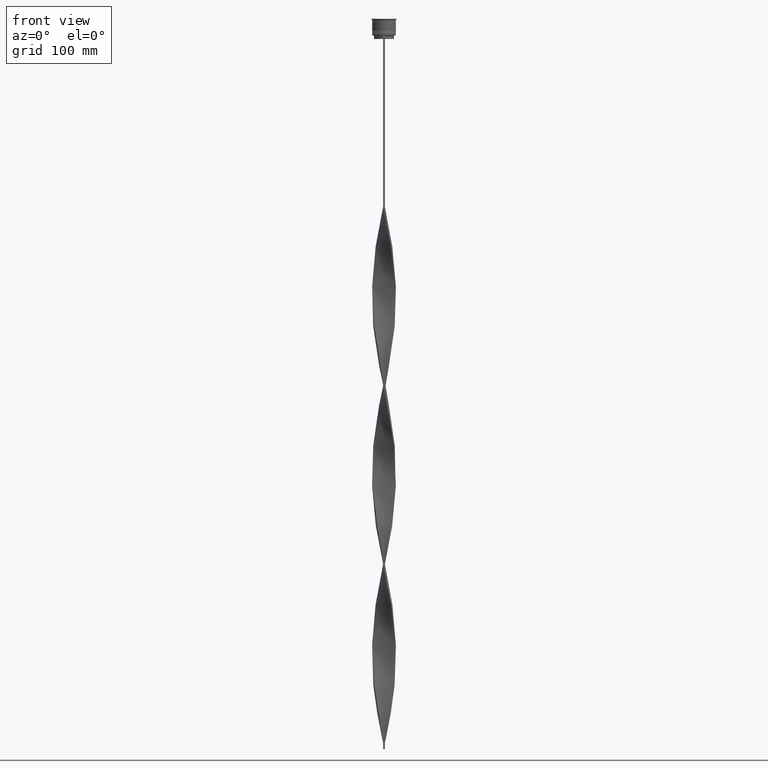
[diagram: clean part render]
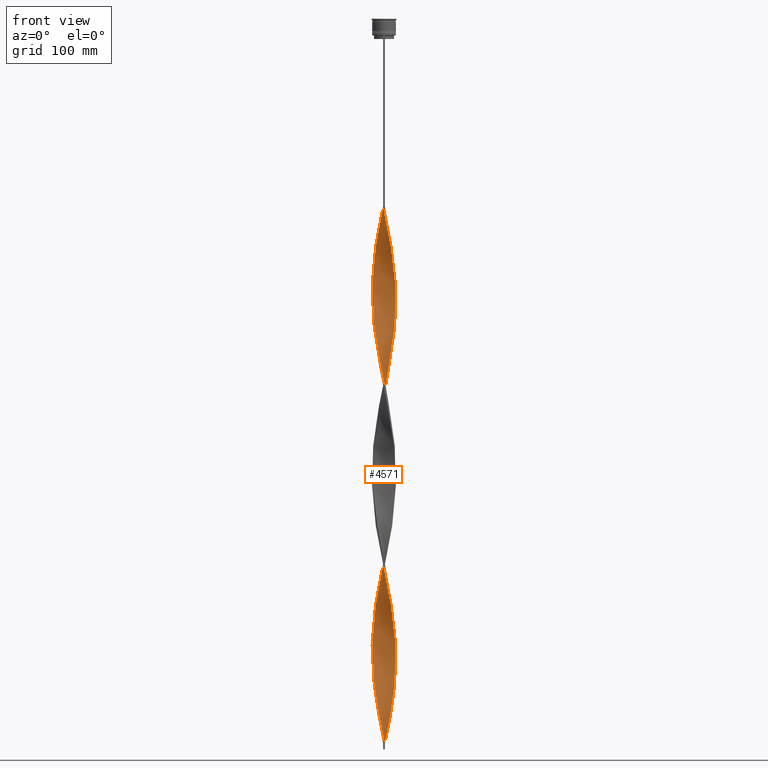
[diagram: same view with one face highlighted and labeled with its STEP entity id]
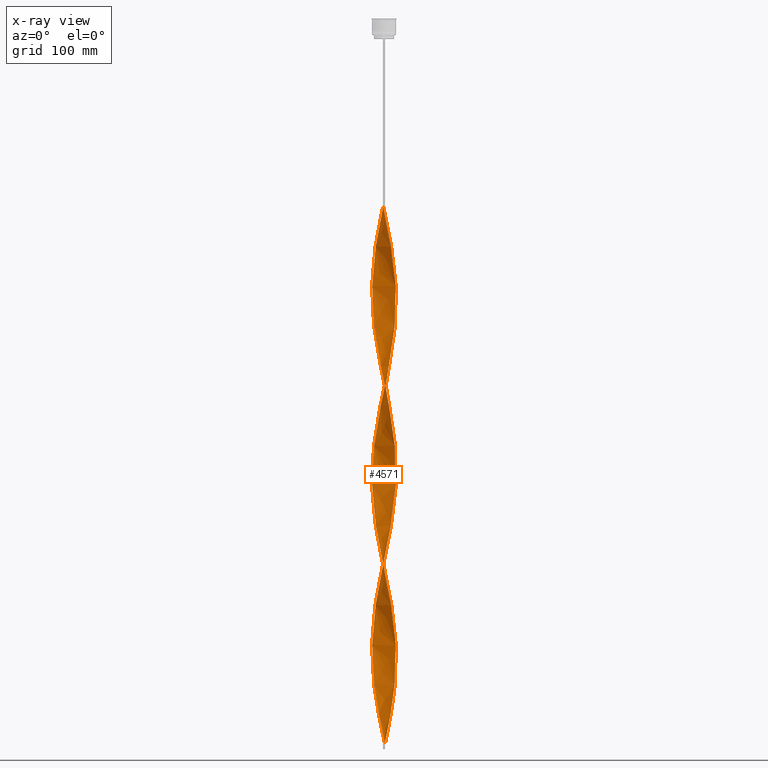
[diagram: x-ray of the same camera — body ghosted, the highlighted face saturated]
A machine part, front view. The second image highlights one B-rep face of the part: STEP entity #4571.
The next image is the same camera in x-ray: the body ghosted, the highlighted face saturated — about 0% of this face is hidden behind the body in this view.
In plain terms, the highlighted face is a freeform B-spline surface patch.
Its self-contained STEP definition (entity closure, byte-faithful):
#8 = CARTESIAN_POINT ( 'NONE',  ( 0.7500000000000011102, 10.00000000000000533, -609.0000000000000000 ) ) ;
#10 = CARTESIAN_POINT ( 'NONE',  ( -9.682265536257563809, 2.692256508309370133, -374.1041666666665719 ) ) ;
#33 = CARTESIAN_POINT ( 'NONE',  ( 9.816553969573071470, -2.048845568230875269, -527.5694444444444571 ) ) ;
#44 = CARTESIAN_POINT ( 'NONE',  ( -2.692256508309364360, 9.682265536257558480, -167.3958333333332860 ) ) ;
#55 = CARTESIAN_POINT ( 'NONE',  ( -8.750108451655689734, 4.942682784217357295, -204.9791666666666288 ) ) ;
#64 = CARTESIAN_POINT ( 'NONE',  ( -10.04915759711142798, -0.09456537184761565351, -230.0347222222222001 ) ) ;
#83 = CARTESIAN_POINT ( 'NONE',  ( 9.525807899386691702, 3.133924674267432486, -552.6249999999998863 ) ) ;
#94 = CARTESIAN_POINT ( 'NONE',  ( -10.01234325790314195, 0.5616782761701593074, -226.9027777777777715 ) ) ;
#100 = B_SPLINE_CURVE_WITH_KNOTS ( 'NONE', 3,
 ( #2717, #121, #1271, #1670 ),
 .UNSPECIFIED., .F., .F.,
 ( 4, 4 ),
 ( 0.000000000000000000, 1.000000000000000000 ),
 .UNSPECIFIED. ) ;
#104 = CARTESIAN_POINT ( 'NONE',  ( 10.00000000000000533, -0.7500000000000005551, -533.8333333333333712 ) ) ;
#106 = CARTESIAN_POINT ( 'NONE',  ( -5.649519052838327227, 8.285254037844385522, -183.0555555555555145 ) ) ;
#115 = CARTESIAN_POINT ( 'NONE',  ( -3.933013133174651621, 9.248022421870022214, -173.6597222222221717 ) ) ;
#116 = CARTESIAN_POINT ( 'NONE',  ( -1.217921924187937321, -9.975528918694859470, -298.9374999999999432 ) ) ;
#121 = CARTESIAN_POINT ( 'NONE',  ( 0.7500000000000002220, 3.333333333333337478, -609.0000000000000000 ) ) ;
#128 = CARTESIAN_POINT ( 'NONE',  ( 3.312634820742012653, 9.465143979063796564, -596.4722222222222854 ) ) ;
#139 = CARTESIAN_POINT ( 'NONE',  ( 9.525807899386681044, -3.133924674267438260, -364.7083333333333144 ) ) ;
#140 = CARTESIAN_POINT ( 'NONE',  ( 9.950842402888573801, 1.405434628152374854, -386.6319444444444571 ) ) ;
#155 = CARTESIAN_POINT ( 'NONE',  ( -5.492599284868781240, -8.390104474668889978, -277.0138888888889142 ) ) ;
#163 = CARTESIAN_POINT ( 'NONE',  ( 7.038959666430926632, -7.172695297828685312, -198.7152777777777430 ) ) ;
#165 = CARTESIAN_POINT ( 'NONE',  ( 9.816553969573071470, -2.048845568230875269, -226.9027777777777715 ) ) ;
#167 = CARTESIAN_POINT ( 'NONE',  ( 9.999999999999998224, 0.7499999999999980016, -383.4999999999999432 ) ) ;
#169 = CARTESIAN_POINT ( 'NONE',  ( 9.975528918694857694, -1.217921924187937988, -374.1041666666665719 ) ) ;
#185 = CARTESIAN_POINT ( 'NONE',  ( 3.933013133174656062, 9.248022421870027543, -292.6736111111110858 ) ) ;
#188 = CARTESIAN_POINT ( 'NONE',  ( 9.248022421870029319, -3.933013133174655618, -217.5069444444443718 ) ) ;
#190 = CARTESIAN_POINT ( 'NONE',  ( -7.476962331155812436, -6.682629295305628325, -264.4861111111110858 ) ) ;
#191 = CARTESIAN_POINT ( 'NONE',  ( 4.519743973034357154, -8.951782750839051062, -327.1250000000000000 ) ) ;
#204 = CARTESIAN_POINT ( 'NONE',  ( 8.655543079808079909, -5.106474812894076898, -211.2430555555555145 ) ) ;
#206 = CARTESIAN_POINT ( 'NONE',  ( 8.285254037844389075, -5.649519052838332556, -208.1111111111110858 ) ) ;
#208 = CARTESIAN_POINT ( 'NONE',  ( -1.217921924187937099, -9.975528918694857694, -298.9374999999999432 ) ) ;
#209 = CARTESIAN_POINT ( 'NONE',  ( -2.692256508309364360, 9.682265536257558480, -468.0624999999999432 ) ) ;
#221 = CARTESIAN_POINT ( 'NONE',  ( 3.133924674267435151, -9.525807899386689925, -176.7916666666666572 ) ) ;
#225 = CARTESIAN_POINT ( 'NONE',  ( 2.692256508309361251, -9.682265536257560257, -317.7291666666665719 ) ) ;
#227 = CARTESIAN_POINT ( 'NONE',  ( -10.01234325790314195, 0.5616782761701593074, -527.5694444444444571 ) ) ;
#242 = CARTESIAN_POINT ( 'NONE',  ( -1.405434628152388399, -9.950842402888575577, -455.5347222222221149 ) ) ;
#246 = CARTESIAN_POINT ( 'NONE',  ( -4.350480947161673662, -9.035254037844383745, -583.9444444444443434 ) ) ;
#247 = CARTESIAN_POINT ( 'NONE',  ( -5.492599284868781240, -8.390104474668889978, -577.6805555555555429 ) ) ;
#261 = CARTESIAN_POINT ( 'NONE',  ( -7.476962331155813324, 6.682629295305638095, -352.1805555555554861 ) ) ;
#263 = CARTESIAN_POINT ( 'NONE',  ( -7.601397897755391320, -6.540737725975566796, -421.0833333333333144 ) ) ;
#284 = CARTESIAN_POINT ( 'NONE',  ( -6.192563292782595319, -7.914964995880695575, -430.4791666666666288 ) ) ;
#286 = CARTESIAN_POINT ( 'NONE',  ( 6.042515785520209626, -8.030100497682095551, -493.1180555555555998 ) ) ;
#288 = CARTESIAN_POINT ( 'NONE',  ( -5.649519052838327227, 8.285254037844385522, -483.7222222222222285 ) ) ;
#289 = CARTESIAN_POINT ( 'NONE',  ( -3.758279110105989584, -9.320399624033075980, -587.0763888888889142 ) ) ;
#296 = VECTOR ( 'NONE', #2449, 1000.000000000000000 ) ;
#309 = CARTESIAN_POINT ( 'NONE',  ( -4.942682784217356406, 8.750108451655700392, -336.5208333333332575 ) ) ;
#311 = CARTESIAN_POINT ( 'NONE',  ( 1.405434628152387067, 9.950842402888577354, -305.2013888888888573 ) ) ;
#313 = CARTESIAN_POINT ( 'NONE',  ( -6.540737725975564132, -7.601397897755384214, -571.4166666666666288 ) ) ;
#314 = CARTESIAN_POINT ( 'NONE',  ( -9.320399624033075980, 3.758279110105987808, -511.9097222222220580 ) ) ;
#333 = CARTESIAN_POINT ( 'NONE',  ( -8.951782750839052838, 4.519743973034369589, -364.7083333333333144 ) ) ;
#334 = CARTESIAN_POINT ( 'NONE',  ( -6.682629295305638983, -7.476962331155813324, -427.3472222222222285 ) ) ;
#336 = CARTESIAN_POINT ( 'NONE',  ( -1.863746081308408575, -9.853372546717571012, -596.4722222222222854 ) ) ;
#358 = CARTESIAN_POINT ( 'NONE',  ( -9.035254037844394404, -4.350480947161667444, -408.5555555555555429 ) ) ;
#383 = CARTESIAN_POINT ( 'NONE',  ( 5.106474812894079562, 8.655543079808078133, -587.0763888888888005 ) ) ;
#385 = CARTESIAN_POINT ( 'NONE',  ( -10.04915759711142798, -0.09456537184761565351, -230.0347222222222001 ) ) ;
#407 = CARTESIAN_POINT ( 'NONE',  ( 6.192563292782590878, 7.914964995880701792, -580.8124999999998863 ) ) ;
#420 = CARTESIAN_POINT ( 'NONE',  ( -0.7499999999999997780, 9.999999999999998224, -157.9999999999999716 ) ) ;
#429 = CARTESIAN_POINT ( 'NONE',  ( 10.01234325790314905, 0.5616782761701567539, -540.0972222222221717 ) ) ;
#431 = CARTESIAN_POINT ( 'NONE',  ( 10.04915759711143508, -0.09456537184761855397, -536.9652777777778283 ) ) ;
#440 = CARTESIAN_POINT ( 'NONE',  ( -7.601397897755385102, 6.540737725975564132, -195.5833333333333144 ) ) ;
#457 = CARTESIAN_POINT ( 'NONE',  ( -5.106474812894072457, 8.655543079808076357, -179.9236111111110574 ) ) ;
#470 = CARTESIAN_POINT ( 'NONE',  ( -3.933013133174652065, 9.248022421870022214, -474.3263888888889142 ) ) ;
#483 = CARTESIAN_POINT ( 'NONE',  ( -8.030100497682088445, 6.042515785520206073, -198.7152777777777430 ) ) ;
#494 = CARTESIAN_POINT ( 'NONE',  ( -9.975528918694857694, 1.217921924187934213, -223.7708333333332860 ) ) ;
#495 = CARTESIAN_POINT ( 'NONE',  ( -4.350480947161673662, -9.035254037844383745, -283.2777777777777146 ) ) ;
#505 = CARTESIAN_POINT ( 'NONE',  ( -7.038959666430927520, -7.172695297828676431, -267.6180555555555429 ) ) ;
#514 = CARTESIAN_POINT ( 'NONE',  ( 10.01234325790314905, 0.5616782761701567539, -239.4305555555555429 ) ) ;
#516 = CARTESIAN_POINT ( 'NONE',  ( 3.933013133174656506, 9.248022421870029319, -292.6736111111110290 ) ) ;
#518 = CARTESIAN_POINT ( 'NONE',  ( 9.035254037844383745, -4.350480947161674550, -358.4444444444444571 ) ) ;
#519 = CARTESIAN_POINT ( 'NONE',  ( 9.682265536257562033, 2.692256508309355922, -392.8958333333332575 ) ) ;
#537 = CARTESIAN_POINT ( 'NONE',  ( 8.951782750839054614, -4.519743973034365148, -214.3749999999999716 ) ) ;
#538 = CARTESIAN_POINT ( 'NONE',  ( 3.133924674267435151, -9.525807899386689925, -176.7916666666666572 ) ) ;
#541 = CARTESIAN_POINT ( 'NONE',  ( 8.951782750839051062, 4.519743973034356266, -402.2916666666666856 ) ) ;
#544 = CARTESIAN_POINT ( 'NONE',  ( 3.758279110105994913, 9.320399624033074204, -436.7430555555554861 ) ) ;
#557 = CARTESIAN_POINT ( 'NONE',  ( 7.914964995880703569, -6.192563292782589990, -204.9791666666666288 ) ) ;
#558 = CARTESIAN_POINT ( 'NONE',  ( 2.048845568230870828, -9.816553969573064364, -314.5972222222221717 ) ) ;
#559 = CARTESIAN_POINT ( 'NONE',  ( -2.048845568230873049, 9.816553969573064364, -464.9305555555555429 ) ) ;
#574 = CARTESIAN_POINT ( 'NONE',  ( 7.601397897755390431, 6.540737725975568573, -270.7500000000000000 ) ) ;
#578 = CARTESIAN_POINT ( 'NONE',  ( 8.030100497682088445, -6.042515785520206073, -349.0486111111110858 ) ) ;
#593 = CARTESIAN_POINT ( 'NONE',  ( 1.217921924187934879, -9.975528918694864799, -167.3958333333332860 ) ) ;
#596 = CARTESIAN_POINT ( 'NONE',  ( 7.601397897755390431, 6.540737725975568573, -270.7500000000000000 ) ) ;
#598 = CARTESIAN_POINT ( 'NONE',  ( 3.133924674267438704, 9.525807899386681044, -439.8749999999999432 ) ) ;
#600 = CARTESIAN_POINT ( 'NONE',  ( -1.217921924187937321, -9.975528918694859470, -599.6041666666666288 ) ) ;
#615 = CARTESIAN_POINT ( 'NONE',  ( 7.914964995880702681, -6.192563292782589990, -505.6458333333333712 ) ) ;
#618 = CARTESIAN_POINT ( 'NONE',  ( -5.106474812894085780, -8.655543079808074580, -436.7430555555554861 ) ) ;
#620 = CARTESIAN_POINT ( 'NONE',  ( -1.217921924187937099, -9.975528918694857694, -599.6041666666666288 ) ) ;
#637 = CARTESIAN_POINT ( 'NONE',  ( 3.758279110105988696, -9.320399624033083086, -480.5902777777776578 ) ) ;
#639 = CARTESIAN_POINT ( 'NONE',  ( 4.350480947161672773, -9.035254037844392627, -483.7222222222222285 ) ) ;
#642 = CARTESIAN_POINT ( 'NONE',  ( -9.950842402888570248, -1.405434628152380183, -536.9652777777778283 ) ) ;
#658 = CARTESIAN_POINT ( 'NONE',  ( -0.7499999999999998890, -10.00000000000000533, -458.6666666666666856 ) ) ;
#659 = CARTESIAN_POINT ( 'NONE',  ( -2.048845568230883707, -9.816553969573067917, -452.4027777777777715 ) ) ;
#661 = CARTESIAN_POINT ( 'NONE',  ( 0.7499999999999985567, -9.999999999999998224, -609.0000000000000000 ) ) ;
#682 = CARTESIAN_POINT ( 'NONE',  ( -5.649519052838336108, -8.285254037844387298, -433.6111111111110858 ) ) ;
#684 = CARTESIAN_POINT ( 'NONE',  ( -10.00000000000000533, 0.7500000000000016653, -383.4999999999999432 ) ) ;
#686 = CARTESIAN_POINT ( 'NONE',  ( -8.285254037844385522, -5.649519052838325450, -558.8888888888889142 ) ) ;
#706 = CARTESIAN_POINT ( 'NONE',  ( 7.038959666430926632, -7.172695297828685312, -499.3819444444444002 ) ) ;
#708 = CARTESIAN_POINT ( 'NONE',  ( 0.5616782761701589743, -10.01234325790314905, -464.9305555555555429 ) ) ;
#710 = CARTESIAN_POINT ( 'NONE',  ( -9.682265536257560257, -2.692256508309361696, -543.2291666666665151 ) ) ;
#729 = CARTESIAN_POINT ( 'NONE',  ( 9.853372546717579894, 1.863746081308407021, -546.3611111111110858 ) ) ;
#757 = CARTESIAN_POINT ( 'NONE',  ( -9.999999999999998224, -0.7499999999999991118, -233.1666666666666288 ) ) ;
#769 = CARTESIAN_POINT ( 'NONE',  ( -9.035254037844385522, 4.350480947161671885, -208.1111111111110858 ) ) ;
#779 = CARTESIAN_POINT ( 'NONE',  ( 1.405434628152387289, 9.950842402888575577, -605.8680555555555429 ) ) ;
#780 = CARTESIAN_POINT ( 'NONE',  ( 8.390104474668897083, 5.492599284868780352, -565.1527777777778283 ) ) ;
#802 = CARTESIAN_POINT ( 'NONE',  ( 9.731216174740296765, 2.509570238428878053, -549.4930555555554292 ) ) ;
#804 = CARTESIAN_POINT ( 'NONE',  ( 9.950842402888577354, -1.405434628152383958, -530.7013888888888005 ) ) ;
#813 = CARTESIAN_POINT ( 'NONE',  ( -9.525807899386684596, 3.133924674267432930, -214.3749999999999716 ) ) ;
#814 = CARTESIAN_POINT ( 'NONE',  ( 7.172695297828676431, -7.038959666430927520, -342.7847222222222285 ) ) ;
#829 = CARTESIAN_POINT ( 'NONE',  ( 9.525807899386691702, 3.133924674267432042, -552.6249999999998863 ) ) ;
#830 = CARTESIAN_POINT ( 'NONE',  ( 4.519743973034366036, 8.951782750839054614, -590.2083333333333712 ) ) ;
#841 = CARTESIAN_POINT ( 'NONE',  ( -9.248022421870022214, -3.933013133174650289, -248.8263888888888289 ) ) ;
#842 = CARTESIAN_POINT ( 'NONE',  ( 7.601397897755380662, -6.540737725975567685, -345.9166666666666288 ) ) ;
#855 = CARTESIAN_POINT ( 'NONE',  ( -8.655543079808076357, -5.106474812894071569, -255.0902777777776862 ) ) ;
#862 = CARTESIAN_POINT ( 'NONE',  ( 8.285254037844389075, -5.649519052838332556, -208.1111111111110858 ) ) ;
#866 = CARTESIAN_POINT ( 'NONE',  ( 8.750108451655687958, -4.942682784217363512, -355.3124999999999432 ) ) ;
#867 = CARTESIAN_POINT ( 'NONE',  ( 3.933013133174646736, -9.248022421870027543, -323.9930555555555429 ) ) ;
#882 = CARTESIAN_POINT ( 'NONE',  ( -2.509570238428876277, 9.731216174740294989, -323.9930555555555998 ) ) ;
#883 = CARTESIAN_POINT ( 'NONE',  ( 0.5616782761701589743, -10.01234325790314905, -164.2638888888888857 ) ) ;
#885 = CARTESIAN_POINT ( 'NONE',  ( -6.042515785520205185, -8.030100497682088445, -273.8819444444443434 ) ) ;
#886 = CARTESIAN_POINT ( 'NONE',  ( 8.750108451655687958, -4.942682784217363512, -355.3124999999998863 ) ) ;
#902 = CARTESIAN_POINT ( 'NONE',  ( 9.320399624033083086, 3.758279110105986920, -255.0902777777777146 ) ) ;
#903 = CARTESIAN_POINT ( 'NONE',  ( 4.942682784217358183, -8.750108451655696840, -186.1875000000000000 ) ) ;
#906 = CARTESIAN_POINT ( 'NONE',  ( 0.7499999999999985567, -9.999999999999998224, -308.3333333333333712 ) ) ;
#908 = CARTESIAN_POINT ( 'NONE',  ( -0.7499999999999997780, 9.999999999999998224, -458.6666666666666856 ) ) ;
#918 = CARTESIAN_POINT ( 'NONE',  ( 9.731216174740296765, 2.509570238428878053, -248.8263888888888289 ) ) ;
#922 = CARTESIAN_POINT ( 'NONE',  ( 5.649519052838325450, -8.285254037844385522, -333.3888888888888573 ) ) ;
#935 = CARTESIAN_POINT ( 'NONE',  ( 4.519743973034366036, 8.951782750839054614, -289.5416666666666288 ) ) ;
#938 = CARTESIAN_POINT ( 'NONE',  ( 10.01234325790314905, 0.5616782761701568649, -239.4305555555555429 ) ) ;
#940 = CARTESIAN_POINT ( 'NONE',  ( 9.731216174740287883, -2.509570238428880273, -367.8402777777777146 ) ) ;
#941 = CARTESIAN_POINT ( 'NONE',  ( -9.525807899386684596, 3.133924674267432930, -515.0416666666666288 ) ) ;
#955 = CARTESIAN_POINT ( 'NONE',  ( 7.476962331155815988, -6.682629295305636319, -502.5138888888889142 ) ) ;
#958 = CARTESIAN_POINT ( 'NONE',  ( -3.758279110105989584, -9.320399624033075980, -587.0763888888888005 ) ) ;
#960 = CARTESIAN_POINT ( 'NONE',  ( -7.601397897755385102, 6.540737725975564132, -496.2499999999999432 ) ) ;
#980 = CARTESIAN_POINT ( 'NONE',  ( -9.248022421870027543, 3.933013133174656062, -367.8402777777777146 ) ) ;
#983 = CARTESIAN_POINT ( 'NONE',  ( 1.863746081308407909, -9.853372546717579894, -471.1944444444444002 ) ) ;
#1005 = CARTESIAN_POINT ( 'NONE',  ( -9.816553969573067917, 2.048845568230882819, -377.2361111111110858 ) ) ;
#1006 = CARTESIAN_POINT ( 'NONE',  ( -8.750108451655700392, -4.942682784217355518, -411.6875000000000000 ) ) ;
#1008 = CARTESIAN_POINT ( 'NONE',  ( -6.042515785520205185, -8.030100497682088445, -574.5486111111110858 ) ) ;
#1009 = CARTESIAN_POINT ( 'NONE',  ( 0.09456537184761269754, -10.04915759711142798, -605.8680555555556566 ) ) ;
#1014 = ORIENTED_EDGE ( 'NONE', *, *, #4067, .F. ) ;
#1024 = CARTESIAN_POINT ( 'NONE',  ( -8.285254037844389075, 5.649519052838336108, -358.4444444444444571 ) ) ;
#1027 = CARTESIAN_POINT ( 'NONE',  ( 0.7500000000000009992, 10.00000000000000533, -308.3333333333333712 ) ) ;
#1029 = CARTESIAN_POINT ( 'NONE',  ( -9.999999999999998224, -0.7499999999999991118, -533.8333333333333712 ) ) ;
#1051 = CARTESIAN_POINT ( 'NONE',  ( -5.492599284868780352, 8.390104474668897083, -339.6527777777777715 ) ) ;
#1052 = CARTESIAN_POINT ( 'NONE',  ( -1.405434628152388177, -9.950842402888577354, -455.5347222222221149 ) ) ;
#1076 = CARTESIAN_POINT ( 'NONE',  ( 9.320399624033083086, 3.758279110105986920, -555.7569444444444571 ) ) ;
#1078 = CARTESIAN_POINT ( 'NONE',  ( 2.048845568230878378, 9.816553969573071470, -602.7361111111110858 ) ) ;
#1099 = CARTESIAN_POINT ( 'NONE',  ( 8.030100497682097327, 6.042515785520204297, -568.2847222222221717 ) ) ;
#1101 = CARTESIAN_POINT ( 'NONE',  ( 7.038959666430927520, -7.172695297828685312, -499.3819444444444002 ) ) ;
#1112 = CARTESIAN_POINT ( 'NONE',  ( -7.172695297828679983, 7.038959666430923079, -192.4513888888888289 ) ) ;
#1124 = CARTESIAN_POINT ( 'NONE',  ( 9.975528918694863023, 1.217921924187931770, -543.2291666666665151 ) ) ;
#1127 = CARTESIAN_POINT ( 'NONE',  ( 5.649519052838335220, 8.285254037844389075, -583.9444444444443434 ) ) ;
#1138 = CARTESIAN_POINT ( 'NONE',  ( -3.312634820742007769, 9.465143979063791235, -170.5277777777777430 ) ) ;
#1149 = CARTESIAN_POINT ( 'NONE',  ( -2.692256508309364360, 9.682265536257558480, -167.3958333333333144 ) ) ;
#1161 = CARTESIAN_POINT ( 'NONE',  ( -3.312634820742007769, 9.465143979063791235, -471.1944444444444002 ) ) ;
#1172 = CARTESIAN_POINT ( 'NONE',  ( 8.655543079808081686, -5.106474812894077786, -511.9097222222220580 ) ) ;
#1183 = CARTESIAN_POINT ( 'NONE',  ( -9.682265536257560257, -2.692256508309361696, -242.5624999999999432 ) ) ;
#1184 = CARTESIAN_POINT ( 'NONE',  ( 5.649519052838325450, -8.285254037844385522, -333.3888888888888573 ) ) ;
#1200 = CARTESIAN_POINT ( 'NONE',  ( -9.248022421870022214, -3.933013133174650289, -248.8263888888888289 ) ) ;
#1209 = CARTESIAN_POINT ( 'NONE',  ( 8.390104474668897083, 5.492599284868780352, -264.4861111111110858 ) ) ;
#1211 = CARTESIAN_POINT ( 'NONE',  ( -0.09456537184761161507, 10.04915759711142798, -455.5347222222221149 ) ) ;
#1212 = CARTESIAN_POINT ( 'NONE',  ( 3.312634820742003772, -9.465143979063794788, -320.8611111111110858 ) ) ;
#1226 = CARTESIAN_POINT ( 'NONE',  ( 0.09456537184761931725, 10.04915759711143508, -311.4652777777777146 ) ) ;
#1227 = CARTESIAN_POINT ( 'NONE',  ( 5.106474812894080451, 8.655543079808079909, -286.4097222222221717 ) ) ;
#1230 = CARTESIAN_POINT ( 'NONE',  ( -0.5616782761701621940, -10.01234325790314195, -302.0694444444444002 ) ) ;
#1231 = CARTESIAN_POINT ( 'NONE',  ( 7.476962331155815988, 6.682629295305624773, -414.8194444444444002 ) ) ;
#1249 = CARTESIAN_POINT ( 'NONE',  ( 9.950842402888577354, -1.405434628152383958, -230.0347222222222001 ) ) ;
#1250 = CARTESIAN_POINT ( 'NONE',  ( 7.476962331155815988, 6.682629295305624773, -414.8194444444444002 ) ) ;
#1251 = CARTESIAN_POINT ( 'NONE',  ( 0.5616782761701681892, 10.01234325790314195, -452.4027777777777715 ) ) ;
#1264 = CARTESIAN_POINT ( 'NONE',  ( 9.465143979063796564, -3.312634820742011765, -220.6388888888888857 ) ) ;
#1265 = CARTESIAN_POINT ( 'NONE',  ( 10.00000000000000533, -0.7500000000000004441, -233.1666666666666288 ) ) ;
#1268 = CARTESIAN_POINT ( 'NONE',  ( -5.492599284868781240, -8.390104474668889978, -277.0138888888889142 ) ) ;
#1270 = CARTESIAN_POINT ( 'NONE',  ( -6.540737725975564132, -7.601397897755384214, -571.4166666666666288 ) ) ;
#1271 = CARTESIAN_POINT ( 'NONE',  ( 0.7499999999999994449, -3.333333333333330373, -609.0000000000000000 ) ) ;
#1283 = CARTESIAN_POINT ( 'NONE',  ( 2.692256508309370133, 9.682265536257565586, -298.9374999999999432 ) ) ;
#1288 = CARTESIAN_POINT ( 'NONE',  ( 9.320399624033075980, -3.758279110105986032, -361.5763888888888005 ) ) ;
#1301 = CARTESIAN_POINT ( 'NONE',  ( -8.750108451655700392, -4.942682784217355518, -411.6875000000000000 ) ) ;
#1303 = CARTESIAN_POINT ( 'NONE',  ( 6.192563292782590878, 7.914964995880701792, -280.1458333333333144 ) ) ;
#1305 = CARTESIAN_POINT ( 'NONE',  ( -6.682629295305630102, 7.476962331155812436, -489.9861111111111427 ) ) ;
#1329 = CARTESIAN_POINT ( 'NONE',  ( 9.465143979063796564, -3.312634820742011765, -521.3055555555554292 ) ) ;
#1331 = CARTESIAN_POINT ( 'NONE',  ( -5.492599284868780352, 8.390104474668897083, -339.6527777777777715 ) ) ;
#1333 = CARTESIAN_POINT ( 'NONE',  ( -9.950842402888570248, -1.405434628152380183, -536.9652777777778283 ) ) ;
#1335 = CARTESIAN_POINT ( 'NONE',  ( -8.390104474668891754, 5.492599284868779463, -502.5138888888889142 ) ) ;
#1356 = CARTESIAN_POINT ( 'NONE',  ( -2.048845568230883707, -9.816553969573067917, -452.4027777777777715 ) ) ;
#1357 = CARTESIAN_POINT ( 'NONE',  ( 2.048845568230878378, 9.816553969573071470, -302.0694444444444002 ) ) ;
#1359 = CARTESIAN_POINT ( 'NONE',  ( -9.248022421870022214, -3.933013133174650289, -549.4930555555554292 ) ) ;
#1378 = CARTESIAN_POINT ( 'NONE',  ( 4.942682784217358183, -8.750108451655696840, -486.8541666666665719 ) ) ;
#1381 = CARTESIAN_POINT ( 'NONE',  ( -7.038959666430927520, 7.172695297828686201, -349.0486111111110858 ) ) ;
#1383 = CARTESIAN_POINT ( 'NONE',  ( -5.492599284868781240, -8.390104474668889978, -577.6805555555555429 ) ) ;
#1401 = CARTESIAN_POINT ( 'NONE',  ( -3.758279110105986920, 9.320399624033083086, -330.2569444444443434 ) ) ;
#1403 = CARTESIAN_POINT ( 'NONE',  ( -8.030100497682097327, -6.042515785520205185, -417.9513888888888005 ) ) ;
#1405 = CARTESIAN_POINT ( 'NONE',  ( -9.525807899386684596, 3.133924674267432930, -515.0416666666666288 ) ) ;
#1431 = CARTESIAN_POINT ( 'NONE',  ( -9.731216174740296765, -2.509570238428879385, -399.1597222222221149 ) ) ;
#1455 = CARTESIAN_POINT ( 'NONE',  ( 8.030100497682097327, 6.042515785520205185, -568.2847222222220580 ) ) ;
#1456 = EDGE_LOOP ( 'NONE', ( #2653, #2649, #4375, #1014 ) ) ;
#1478 = CARTESIAN_POINT ( 'NONE',  ( -9.816553969573064364, -2.048845568230871272, -239.4305555555555429 ) ) ;
#1489 = CARTESIAN_POINT ( 'NONE',  ( -8.390104474668891754, 5.492599284868779463, -201.8472222222222001 ) ) ;
#1503 = CARTESIAN_POINT ( 'NONE',  ( 9.853372546717579894, 1.863746081308406799, -546.3611111111110858 ) ) ;
#1504 = CARTESIAN_POINT ( 'NONE',  ( 9.035254037844392627, 4.350480947161671885, -558.8888888888889142 ) ) ;
#1526 = CARTESIAN_POINT ( 'NONE',  ( -6.682629295305630102, 7.476962331155812436, -189.3194444444444287 ) ) ;
#1538 = CARTESIAN_POINT ( 'NONE',  ( -9.999999999999998224, -0.7499999999999991118, -233.1666666666666288 ) ) ;
#1539 = CARTESIAN_POINT ( 'NONE',  ( -2.509570238428880273, -9.731216174740287883, -292.6736111111110290 ) ) ;
#1548 = CARTESIAN_POINT ( 'NONE',  ( -9.525807899386684596, 3.133924674267432930, -214.3749999999999716 ) ) ;
#1555 = CARTESIAN_POINT ( 'NONE',  ( 2.048845568230878378, 9.816553969573071470, -302.0694444444444002 ) ) ;
#1559 = CARTESIAN_POINT ( 'NONE',  ( 1.217921924187938210, 9.975528918694857694, -449.2708333333333144 ) ) ;
#1561 = CARTESIAN_POINT ( 'NONE',  ( -0.5616782761701621940, -10.01234325790314195, -302.0694444444444002 ) ) ;
#1576 = CARTESIAN_POINT ( 'NONE',  ( -8.951782750839049285, -4.519743973034358930, -251.9583333333332860 ) ) ;
#1584 = CARTESIAN_POINT ( 'NONE',  ( 9.853372546717579894, 1.863746081308406799, -245.6944444444444287 ) ) ;
#1585 = CARTESIAN_POINT ( 'NONE',  ( 7.172695297828685312, 7.038959666430927520, -273.8819444444444002 ) ) ;
#1587 = CARTESIAN_POINT ( 'NONE',  ( 6.042515785520209626, 8.030100497682084892, -424.2152777777777146 ) ) ;
#1588 = CARTESIAN_POINT ( 'NONE',  ( 8.285254037844389075, 5.649519052838321009, -408.5555555555555429 ) ) ;
#1606 = CARTESIAN_POINT ( 'NONE',  ( 3.312634820742012653, 9.465143979063796564, -295.8055555555555429 ) ) ;
#1608 = CARTESIAN_POINT ( 'NONE',  ( 9.465143979063796564, -3.312634820742011765, -220.6388888888888857 ) ) ;
#1610 = CARTESIAN_POINT ( 'NONE',  ( -4.350480947161673662, -9.035254037844383745, -283.2777777777777146 ) ) ;
#1611 = CARTESIAN_POINT ( 'NONE',  ( 2.509570238428881161, 9.731216174740287883, -443.0069444444444002 ) ) ;
#1616 = EDGE_CURVE ( 'NONE', #2275, #2582, #2444, .T. ) ;
#1623 = CARTESIAN_POINT ( 'NONE',  ( 7.476962331155815988, -6.682629295305636319, -201.8472222222222001 ) ) ;
#1626 = CARTESIAN_POINT ( 'NONE',  ( 8.390104474668889978, -5.492599284868781240, -352.1805555555554861 ) ) ;
#1627 = CARTESIAN_POINT ( 'NONE',  ( 10.04915759711142798, 0.09456537184761215631, -380.3680555555554861 ) ) ;
#1645 = CARTESIAN_POINT ( 'NONE',  ( -0.7499999999999997780, -10.00000000000000533, -157.9999999999999716 ) ) ;
#1648 = CARTESIAN_POINT ( 'NONE',  ( 0.09456537184761271142, -10.04915759711142798, -305.2013888888888573 ) ) ;
#1650 = CARTESIAN_POINT ( 'NONE',  ( -6.192563292782584661, 7.914964995880697352, -486.8541666666665719 ) ) ;
#1662 = CARTESIAN_POINT ( 'NONE',  ( -9.525807899386691702, -3.133924674267428490, -402.2916666666666856 ) ) ;
#1664 = FACE_OUTER_BOUND ( 'NONE', #1456, .T. ) ;
#1667 = CARTESIAN_POINT ( 'NONE',  ( -8.750108451655689734, 4.942682784217357295, -505.6458333333333712 ) ) ;
#1668 = CARTESIAN_POINT ( 'NONE',  ( -9.999999999999998224, -0.7499999999999991118, -533.8333333333333712 ) ) ;
#1670 = CARTESIAN_POINT ( 'NONE',  ( 0.7499999999999985567, -9.999999999999998224, -609.0000000000000000 ) ) ;
#1682 = CARTESIAN_POINT ( 'NONE',  ( 0.5616782761701588633, -10.01234325790314905, -464.9305555555555429 ) ) ;
#1683 = CARTESIAN_POINT ( 'NONE',  ( -9.525807899386691702, -3.133924674267428934, -402.2916666666666856 ) ) ;
#1687 = CARTESIAN_POINT ( 'NONE',  ( -8.750108451655689734, 4.942682784217357295, -505.6458333333333712 ) ) ;
#1705 = CARTESIAN_POINT ( 'NONE',  ( -5.106474812894084891, -8.655543079808072804, -436.7430555555554861 ) ) ;
#1706 = CARTESIAN_POINT ( 'NONE',  ( 6.540737725975569461, -7.601397897755390431, -496.2499999999999432 ) ) ;
#1708 = CARTESIAN_POINT ( 'NONE',  ( -8.390104474668891754, 5.492599284868779463, -502.5138888888889142 ) ) ;
#1730 = CARTESIAN_POINT ( 'NONE',  ( -8.655543079808079909, 5.106474812894076010, -361.5763888888888005 ) ) ;
#1732 = CARTESIAN_POINT ( 'NONE',  ( -6.540737725975565020, 7.601397897755393984, -345.9166666666666288 ) ) ;
#1734 = CARTESIAN_POINT ( 'NONE',  ( -10.01234325790314195, 0.5616782761701593074, -527.5694444444444571 ) ) ;
#1754 = CARTESIAN_POINT ( 'NONE',  ( -7.914964995880697352, 6.192563292782595319, -355.3124999999999432 ) ) ;
#1755 = CARTESIAN_POINT ( 'NONE',  ( -9.853372546717578118, -1.863746081308403246, -396.0277777777777715 ) ) ;
#1774 = CARTESIAN_POINT ( 'NONE',  ( 7.601397897755390431, 6.540737725975568573, -571.4166666666666288 ) ) ;
#1777 = CARTESIAN_POINT ( 'NONE',  ( -3.312634820742017983, -9.465143979063794788, -446.1388888888888573 ) ) ;
#1804 = CARTESIAN_POINT ( 'NONE',  ( 7.172695297828685312, 7.038959666430927520, -574.5486111111111995 ) ) ;
#1830 = CARTESIAN_POINT ( 'NONE',  ( 8.951782750839054614, -4.519743973034365148, -515.0416666666666288 ) ) ;
#1840 = CARTESIAN_POINT ( 'NONE',  ( -4.519743973034361595, 8.951782750839049285, -176.7916666666666572 ) ) ;
#1852 = CARTESIAN_POINT ( 'NONE',  ( 9.682265536257565586, -2.692256508309367025, -524.4375000000000000 ) ) ;
#1862 = CARTESIAN_POINT ( 'NONE',  ( -9.320399624033075980, 3.758279110105987808, -211.2430555555555145 ) ) ;
#1878 = CARTESIAN_POINT ( 'NONE',  ( 6.192563292782590878, 7.914964995880699128, -580.8124999999998863 ) ) ;
#1879 = CARTESIAN_POINT ( 'NONE',  ( 7.914964995880703569, -6.192563292782589990, -505.6458333333333712 ) ) ;
#1889 = CARTESIAN_POINT ( 'NONE',  ( -4.519743973034361595, 8.951782750839049285, -477.4583333333333144 ) ) ;
#1900 = CARTESIAN_POINT ( 'NONE',  ( -8.390104474668891754, 5.492599284868779463, -201.8472222222222001 ) ) ;
#1910 = CARTESIAN_POINT ( 'NONE',  ( -8.655543079808074580, -5.106474812894071569, -255.0902777777777146 ) ) ;
#1911 = CARTESIAN_POINT ( 'NONE',  ( -3.133924674267433819, -9.525807899386684596, -289.5416666666666288 ) ) ;
#1920 = CARTESIAN_POINT ( 'NONE',  ( -8.285254037844385522, -5.649519052838325450, -258.2222222222221717 ) ) ;
#1928 = CARTESIAN_POINT ( 'NONE',  ( 9.248022421870027543, -3.933013133174655174, -217.5069444444443718 ) ) ;
#1930 = CARTESIAN_POINT ( 'NONE',  ( 8.655543079808074580, 5.106474812894070681, -405.4236111111110858 ) ) ;
#1931 = CARTESIAN_POINT ( 'NONE',  ( 9.465143979063794788, 3.312634820742003772, -396.0277777777777715 ) ) ;
#1951 = CARTESIAN_POINT ( 'NONE',  ( 10.00000000000000533, -0.7500000000000005551, -233.1666666666666288 ) ) ;
#1952 = CARTESIAN_POINT ( 'NONE',  ( 4.350480947161672773, -9.035254037844392627, -183.0555555555555145 ) ) ;
#1954 = CARTESIAN_POINT ( 'NONE',  ( 5.492599284868783016, 8.390104474668889978, -427.3472222222222285 ) ) ;
#1955 = CARTESIAN_POINT ( 'NONE',  ( 10.01234325790314195, -0.5616782761701673010, -377.2361111111110858 ) ) ;
#1969 = CARTESIAN_POINT ( 'NONE',  ( 0.5616782761701588633, -10.01234325790314905, -164.2638888888888857 ) ) ;
#1974 = CARTESIAN_POINT ( 'NONE',  ( 8.285254037844389075, 5.649519052838321009, -408.5555555555555429 ) ) ;
#1975 = CARTESIAN_POINT ( 'NONE',  ( 8.655543079808076357, 5.106474812894070681, -405.4236111111110858 ) ) ;
#1987 = CARTESIAN_POINT ( 'NONE',  ( 7.172695297828685312, 7.038959666430926632, -273.8819444444443434 ) ) ;
#1988 = CARTESIAN_POINT ( 'NONE',  ( 1.217921924187935101, -9.975528918694866576, -167.3958333333333144 ) ) ;
#1990 = CARTESIAN_POINT ( 'NONE',  ( 5.106474812894070681, -8.655543079808074580, -330.2569444444443434 ) ) ;
#1991 = CARTESIAN_POINT ( 'NONE',  ( -6.682629295305630102, 7.476962331155812436, -489.9861111111111427 ) ) ;
#2010 = CARTESIAN_POINT ( 'NONE',  ( 6.192563292782590878, 7.914964995880699128, -280.1458333333333144 ) ) ;
#2012 = CARTESIAN_POINT ( 'NONE',  ( 6.682629295305638095, 7.476962331155814212, -277.0138888888889142 ) ) ;
#2015 = CARTESIAN_POINT ( 'NONE',  ( 1.863746081308414348, 9.853372546717571012, -446.1388888888888573 ) ) ;
#2031 = CARTESIAN_POINT ( 'NONE',  ( -4.350480947161670997, 9.035254037844394404, -333.3888888888888573 ) ) ;
#2033 = CARTESIAN_POINT ( 'NONE',  ( -8.285254037844389075, 5.649519052838336108, -358.4444444444444571 ) ) ;
#2035 = CARTESIAN_POINT ( 'NONE',  ( -9.816553969573064364, -2.048845568230871272, -540.0972222222221717 ) ) ;
#2051 = CARTESIAN_POINT ( 'NONE',  ( 8.285254037844389075, -5.649519052838332556, -508.7777777777777715 ) ) ;
#2052 = CARTESIAN_POINT ( 'NONE',  ( 4.942682784217358183, -8.750108451655696840, -486.8541666666665719 ) ) ;
#2054 = CARTESIAN_POINT ( 'NONE',  ( -5.106474812894072457, 8.655543079808074580, -480.5902777777776578 ) ) ;
#2057 = CARTESIAN_POINT ( 'NONE',  ( -7.914964995880700016, -6.192563292782582884, -562.0208333333331439 ) ) ;
#2077 = CARTESIAN_POINT ( 'NONE',  ( -6.540737725975565020, 7.601397897755393984, -345.9166666666666288 ) ) ;
#2079 = CARTESIAN_POINT ( 'NONE',  ( -9.816553969573067917, 2.048845568230882819, -377.2361111111110858 ) ) ;
#2081 = CARTESIAN_POINT ( 'NONE',  ( -3.312634820742007769, 9.465143979063791235, -471.1944444444444002 ) ) ;
#2090 = VERTEX_POINT ( 'NONE', #2795 ) ;
#2100 = CARTESIAN_POINT ( 'NONE',  ( 3.133924674267435151, -9.525807899386689925, -477.4583333333333144 ) ) ;
#2102 = CARTESIAN_POINT ( 'NONE',  ( -6.042515785520205185, 8.030100497682097327, -342.7847222222222285 ) ) ;
#2105 = CARTESIAN_POINT ( 'NONE',  ( -7.038959666430926632, -7.172695297828676431, -568.2847222222221717 ) ) ;
#2118 =( BOUNDED_CURVE ( )  B_SPLINE_CURVE ( 2, ( #3033, #4022, #1969, #593, #3370, #2634, #221, #2336, #3333, #2300, #4079, #2282, #2712, #163, #1623, #2357, #862, #204, #537, #1928, #1264, #3730, #4435, #3054, #1951, #3352, #514, #2692, #1584, #918, #4062, #902, #4099, #3410, #1209, #2974, #574, #1987, #3386, #2010, #2671, #4455, #935, #185, #1606, #1283, #1555, #2996, #4397, #1226, #2654, #4043, #3014, #882, #4419, #1401, #2031, #309, #1051, #2728, #2077, #3476, #261, #1754, #1024, #1730, #333, #980, #2404, #2382, #1005, #3770, #4543, #2779, #4173, #2826, #2126, #4469, #1662, #3816, #2453, #1301, #2803, #2427, #3843, #4220, #3451, #284, #682, #1705, #3117, #4564, #4520, #2479, #1356, #242, #658, #3138, #1682, #3794, #4119, #3071, #2100, #637, #3864, #1378, #4194, #3498, #3160, #706, #955, #615, #2051, #3428, #3090, #4490, #1329, #2757, #4147, #4317, #104, #3962, #429, #1124, #1503, #802, #829, #1076, #2501, #4293, #2220, #1099, #1774, #3566, #2944, #1878, #2551, #383, #3939, #3258, #3283, #2921, #3184, #779, #8 ),
 .UNSPECIFIED., .F., .T. ) 
 B_SPLINE_CURVE_WITH_KNOTS ( ( 3, 2, 2, 2, 2, 2, 2, 2, 2, 2, 2, 2, 2, 2, 2, 2, 2, 2, 2, 2, 2, 2, 2, 2, 2, 2, 2, 2, 2, 2, 2, 2, 2, 2, 2, 2, 2, 2, 2, 2, 2, 2, 2, 2, 2, 2, 2, 2, 2, 2, 2, 2, 2, 2, 2, 2, 2, 2, 2, 2, 2, 2, 2, 2, 2, 2, 2, 2, 2, 2, 2, 2, 3 ),
 ( 0.000000000000000000, 0.01041666666666666609, 0.02083333333333333218, 0.03125000000000000000, 0.04166666666666666435, 0.05208333333333333565, 0.06250000000000000000, 0.07291666666666667129, 0.08333333333333332871, 0.09375000000000000000, 0.1041666666666666713, 0.1145833333333333287, 0.1250000000000000000, 0.1354166666666666574, 0.1458333333333333426, 0.1562500000000000000, 0.1666666666666666574, 0.1770833333333333426, 0.1875000000000000000, 0.1979166666666666574, 0.2083333333333333426, 0.2187500000000000000, 0.2291666666666666574, 0.2395833333333333426, 0.2500000000000000000, 0.2604166666666666852, 0.2708333333333333148, 0.2812500000000000000, 0.2916666666666666852, 0.3020833333333333148, 0.3125000000000000000, 0.3229166666666666852, 0.3333333333333333148, 0.3437500000000000000, 0.3541666666666666852, 0.3645833333333333148, 0.3750000000000000000, 0.3854166666666666852, 0.3958333333333333148, 0.4062500000000000000, 0.4166666666666666852, 0.4270833333333333148, 0.4375000000000000000, 0.4479166666666666852, 0.4583333333333333148, 0.4687500000000000000, 0.4791666666666666852, 0.4895833333333333148, 0.5000000000000000000, 0.5104166666666666297, 0.5208333333333333703, 0.5312500000000000000, 0.5416666666666666297, 0.5520833333333333703, 0.5625000000000000000, 0.5729166666666666297, 0.5833333333333333703, 0.5937500000000000000, 0.6041666666666666297, 0.6145833333333333703, 0.6250000000000000000, 0.6354166666666666297, 0.6458333333333333703, 0.6562500000000000000, 0.6666666666666666297, 0.6770833333333333703, 0.6875000000000000000, 0.6979166666666666297, 0.7083333333333333703, 0.7187500000000000000, 0.7291666666666666297, 0.7395833333333333703, 0.7500000000000000000 ),
 .UNSPECIFIED. ) 
 CURVE ( )  GEOMETRIC_REPRESENTATION_ITEM ( )  RATIONAL_B_SPLINE_CURVE ( ( 1.000000000000000000, 0.9978589232386034791, 1.000000000000000000, 0.9978589232386034791, 1.000000000000000000, 0.9978589232386034791, 1.000000000000000000, 0.9978589232386034791, 1.000000000000000000, 0.9978589232386034791, 1.000000000000000000, 0.9978589232386034791, 1.000000000000000000, 0.9978589232386034791, 1.000000000000000000, 0.9978589232386034791, 1.000000000000000000, 0.9978589232386034791, 1.000000000000000000, 0.9978589232386034791, 1.000000000000000000, 0.9978589232386034791, 1.000000000000000000, 0.9978589232386034791, 1.000000000000000000, 0.9978589232386034791, 1.000000000000000000, 0.9978589232386034791, 1.000000000000000000, 0.9978589232386034791, 1.000000000000000000, 0.9978589232386034791, 1.000000000000000000, 0.9978589232386034791, 1.000000000000000000, 0.9978589232386034791, 1.000000000000000000, 0.9978589232386034791, 1.000000000000000000, 0.9978589232386034791, 1.000000000000000000, 0.9978589232386034791, 1.000000000000000000, 0.9978589232386034791, 1.000000000000000000, 0.9978589232386034791, 1.000000000000000000, 0.9978589232386034791, 1.000000000000000000, 0.9978589232386034791, 1.000000000000000000, 0.9978589232386034791, 1.000000000000000000, 0.9978589232386034791, 1.000000000000000000, 0.9978589232386034791, 1.000000000000000000, 0.9978589232386034791, 1.000000000000000000, 0.9978589232386034791, 1.000000000000000000, 0.9978589232386034791, 1.000000000000000000, 0.9978589232386034791, 1.000000000000000000, 0.9978589232386034791, 1.000000000000000000, 0.9978589232386034791, 1.000000000000000000, 0.9978589232386034791, 1.000000000000000000, 0.9978589232386034791, 1.000000000000000000, 0.9978589232386034791, 1.000000000000000000, 0.9978589232386034791, 1.000000000000000000, 0.9978589232386034791, 1.000000000000000000, 0.9978589232386034791, 1.000000000000000000, 0.9978589232386034791, 1.000000000000000000, 0.9978589232386034791, 1.000000000000000000, 0.9978589232386034791, 1.000000000000000000, 0.9978589232386034791, 1.000000000000000000, 0.9978589232386034791, 1.000000000000000000, 0.9978589232386034791, 1.000000000000000000, 0.9978589232386034791, 1.000000000000000000, 0.9978589232386034791, 1.000000000000000000, 0.9978589232386034791, 1.000000000000000000, 0.9978589232386034791, 1.000000000000000000, 0.9978589232386034791, 1.000000000000000000, 0.9978589232386034791, 1.000000000000000000, 0.9978589232386034791, 1.000000000000000000, 0.9978589232386034791, 1.000000000000000000, 0.9978589232386034791, 1.000000000000000000, 0.9978589232386034791, 1.000000000000000000, 0.9978589232386034791, 1.000000000000000000, 0.9978589232386034791, 1.000000000000000000, 0.9978589232386034791, 1.000000000000000000, 0.9978589232386034791, 1.000000000000000000, 0.9978589232386034791, 1.000000000000000000, 0.9978589232386034791, 1.000000000000000000, 0.9978589232386034791, 1.000000000000000000, 0.9978589232386034791, 1.000000000000000000, 0.9978589232386034791, 1.000000000000000000, 0.9978589232386034791, 1.000000000000000000, 0.9978589232386034791, 1.000000000000000000, 0.9978589232386034791, 1.000000000000000000, 0.9978589232386034791, 1.000000000000000000, 0.9978589232386034791, 1.000000000000000000, 0.9978589232386034791, 1.000000000000000000, 0.9978589232386034791, 1.000000000000000000 ) ) 
 REPRESENTATION_ITEM ( '' )  );
#2126 = CARTESIAN_POINT ( 'NONE',  ( -9.853372546717578118, -1.863746081308403024, -396.0277777777777715 ) ) ;
#2128 = CARTESIAN_POINT ( 'NONE',  ( 1.217921924187935101, -9.975528918694866576, -468.0624999999999432 ) ) ;
#2151 = CARTESIAN_POINT ( 'NONE',  ( -9.975528918694859470, 1.217921924187934213, -223.7708333333332575 ) ) ;
#2175 = CARTESIAN_POINT ( 'NONE',  ( -3.312634820742007769, 9.465143979063791235, -170.5277777777777430 ) ) ;
#2199 = CARTESIAN_POINT ( 'NONE',  ( -2.048845568230873049, 9.816553969573064364, -164.2638888888888857 ) ) ;
#2220 = CARTESIAN_POINT ( 'NONE',  ( 8.390104474668897083, 5.492599284868780352, -565.1527777777778283 ) ) ;
#2222 = CARTESIAN_POINT ( 'NONE',  ( -0.7499999999999997780, 9.999999999999998224, -157.9999999999999716 ) ) ;
#2234 = CARTESIAN_POINT ( 'NONE',  ( 4.942682784217363512, 8.750108451655687958, -430.4791666666666288 ) ) ;
#2250 = CARTESIAN_POINT ( 'NONE',  ( 10.01234325790314905, 0.5616782761701568649, -540.0972222222221717 ) ) ;
#2260 = CARTESIAN_POINT ( 'NONE',  ( -6.192563292782584661, 7.914964995880697352, -186.1874999999999716 ) ) ;
#2261 = CARTESIAN_POINT ( 'NONE',  ( 8.390104474668889978, -5.492599284868781240, -352.1805555555554861 ) ) ;
#2274 = CARTESIAN_POINT ( 'NONE',  ( -9.465143979063791235, -3.312634820742006880, -245.6944444444444287 ) ) ;
#2275 = VERTEX_POINT ( 'NONE', #4259 ) ;
#2282 = CARTESIAN_POINT ( 'NONE',  ( 6.042515785520208738, -8.030100497682095551, -192.4513888888888289 ) ) ;
#2286 = CARTESIAN_POINT ( 'NONE',  ( 3.933013133174646736, -9.248022421870025767, -323.9930555555555998 ) ) ;
#2287 = CARTESIAN_POINT ( 'NONE',  ( 5.106474812894070681, -8.655543079808076357, -330.2569444444443434 ) ) ;
#2300 = CARTESIAN_POINT ( 'NONE',  ( 4.942682784217358183, -8.750108451655696840, -186.1874999999999716 ) ) ;
#2301 = CARTESIAN_POINT ( 'NONE',  ( 1.863746081308407909, -9.853372546717579894, -170.5277777777777430 ) ) ;
#2302 = CARTESIAN_POINT ( 'NONE',  ( 9.248022421870022214, 3.933013133174650733, -399.1597222222221149 ) ) ;
#2303 = CARTESIAN_POINT ( 'NONE',  ( 6.042515785520210514, 8.030100497682084892, -424.2152777777777146 ) ) ;
#2323 = CARTESIAN_POINT ( 'NONE',  ( 6.042515785520209626, -8.030100497682095551, -192.4513888888888289 ) ) ;
#2324 = CARTESIAN_POINT ( 'NONE',  ( 9.853372546717571012, -1.863746081308413904, -370.9722222222222285 ) ) ;
#2326 = CARTESIAN_POINT ( 'NONE',  ( -1.405434628152381515, 9.950842402888570248, -461.7986111111110290 ) ) ;
#2336 = CARTESIAN_POINT ( 'NONE',  ( 3.758279110105988696, -9.320399624033083086, -179.9236111111110574 ) ) ;
#2341 = CARTESIAN_POINT ( 'NONE',  ( 9.816553969573064364, 2.048845568230869940, -389.7638888888889142 ) ) ;
#2342 = CARTESIAN_POINT ( 'NONE',  ( -9.248022421870022214, -3.933013133174650289, -549.4930555555553156 ) ) ;
#2357 = CARTESIAN_POINT ( 'NONE',  ( 7.914964995880702681, -6.192563292782589990, -204.9791666666666288 ) ) ;
#2358 = CARTESIAN_POINT ( 'NONE',  ( 9.035254037844392627, 4.350480947161671885, -258.2222222222221717 ) ) ;
#2360 = CARTESIAN_POINT ( 'NONE',  ( 3.312634820742003772, -9.465143979063794788, -320.8611111111110858 ) ) ;
#2361 = CARTESIAN_POINT ( 'NONE',  ( -5.649519052838327227, 8.285254037844385522, -483.7222222222222285 ) ) ;
#2382 = CARTESIAN_POINT ( 'NONE',  ( -9.682265536257563809, 2.692256508309370133, -374.1041666666666288 ) ) ;
#2384 = CARTESIAN_POINT ( 'NONE',  ( 3.758279110105988696, -9.320399624033084862, -480.5902777777776578 ) ) ;
#2386 = CARTESIAN_POINT ( 'NONE',  ( -9.816553969573064364, -2.048845568230871272, -540.0972222222221717 ) ) ;
#2387 = CARTESIAN_POINT ( 'NONE',  ( -9.731216174740287883, 2.509570238428879385, -518.1736111111110858 ) ) ;
#2404 = CARTESIAN_POINT ( 'NONE',  ( -9.465143979063794788, 3.312634820742017538, -370.9722222222222285 ) ) ;
#2407 = CARTESIAN_POINT ( 'NONE',  ( 0.09456537184761920622, 10.04915759711143508, -311.4652777777776578 ) ) ;
#2423 = CARTESIAN_POINT ( 'NONE',  ( -0.7499999999999997780, -10.00000000000000533, -157.9999999999999716 ) ) ;
#2427 = CARTESIAN_POINT ( 'NONE',  ( -8.030100497682097327, -6.042515785520203409, -417.9513888888888573 ) ) ;
#2429 = CARTESIAN_POINT ( 'NONE',  ( -8.390104474668900636, -5.492599284868775911, -414.8194444444444002 ) ) ;
#2431 = CARTESIAN_POINT ( 'NONE',  ( -2.509570238428880273, -9.731216174740287883, -593.3402777777777146 ) ) ;
#2432 = CARTESIAN_POINT ( 'NONE',  ( -7.172695297828679983, 7.038959666430923967, -493.1180555555555998 ) ) ;
#2444 =( BOUNDED_CURVE ( )  B_SPLINE_CURVE ( 2, ( #420, #3223, #3975, #44, #1138, #115, #1840, #2883, #2563, #2260, #3600, #1112, #440, #2540, #1489, #3931, #769, #1862, #813, #3295, #3271, #494, #94, #64, #1538, #2954, #4353, #1183, #2609, #841, #3900, #1910, #2862, #3356, #190, #4084, #2637, #885, #1268, #3751, #1610, #4400, #2697, #3716, #3017, #208, #1230, #1648, #906, #2676, #558, #225, #2360, #2286, #4422, #1990, #922, #4046, #3336, #3674, #4102, #578, #1626, #866, #518, #1288, #139, #940, #2324, #3694, #4065, #3374, #167, #3059, #2341, #3036, #4458, #2302, #541, #1930, #1974, #2656, #1250, #2999, #4440, #1587, #1954, #3734, #3390, #2715, #598, #4379, #2015, #1559, #2977, #1211, #4025, #3454, #3846, #2732, #2081, #2784, #4567, #2054, #288, #2807, #1305, #4151, #4548, #2482, #1708, #1667, #4197, #3798, #1405, #4178, #3121, #3479, #1734, #4524, #1029, #1333, #2386, #710, #3164, #1359, #2457, #3414, #686, #2830, #4224, #2105, #313, #1008, #1383, #3501, #246, #958, #3774, #2431, #336, #620, #2760, #3819, #661 ),
 .UNSPECIFIED., .F., .T. ) 
 B_SPLINE_CURVE_WITH_KNOTS ( ( 3, 2, 2, 2, 2, 2, 2, 2, 2, 2, 2, 2, 2, 2, 2, 2, 2, 2, 2, 2, 2, 2, 2, 2, 2, 2, 2, 2, 2, 2, 2, 2, 2, 2, 2, 2, 2, 2, 2, 2, 2, 2, 2, 2, 2, 2, 2, 2, 2, 2, 2, 2, 2, 2, 2, 2, 2, 2, 2, 2, 2, 2, 2, 2, 2, 2, 2, 2, 2, 2, 2, 2, 3 ),
 ( 0.000000000000000000, 0.01041666666666666609, 0.02083333333333333218, 0.03125000000000000000, 0.04166666666666666435, 0.05208333333333333565, 0.06250000000000000000, 0.07291666666666667129, 0.08333333333333332871, 0.09375000000000000000, 0.1041666666666666713, 0.1145833333333333287, 0.1250000000000000000, 0.1354166666666666574, 0.1458333333333333426, 0.1562500000000000000, 0.1666666666666666574, 0.1770833333333333426, 0.1875000000000000000, 0.1979166666666666574, 0.2083333333333333426, 0.2187500000000000000, 0.2291666666666666574, 0.2395833333333333426, 0.2500000000000000000, 0.2604166666666666852, 0.2708333333333333148, 0.2812500000000000000, 0.2916666666666666852, 0.3020833333333333148, 0.3125000000000000000, 0.3229166666666666852, 0.3333333333333333148, 0.3437500000000000000, 0.3541666666666666852, 0.3645833333333333148, 0.3750000000000000000, 0.3854166666666666852, 0.3958333333333333148, 0.4062500000000000000, 0.4166666666666666852, 0.4270833333333333148, 0.4375000000000000000, 0.4479166666666666852, 0.4583333333333333148, 0.4687500000000000000, 0.4791666666666666852, 0.4895833333333333148, 0.5000000000000000000, 0.5104166666666666297, 0.5208333333333333703, 0.5312500000000000000, 0.5416666666666666297, 0.5520833333333333703, 0.5625000000000000000, 0.5729166666666666297, 0.5833333333333333703, 0.5937500000000000000, 0.6041666666666666297, 0.6145833333333333703, 0.6250000000000000000, 0.6354166666666666297, 0.6458333333333333703, 0.6562500000000000000, 0.6666666666666666297, 0.6770833333333333703, 0.6875000000000000000, 0.6979166666666666297, 0.7083333333333333703, 0.7187500000000000000, 0.7291666666666666297, 0.7395833333333333703, 0.7500000000000000000 ),
 .UNSPECIFIED. ) 
 CURVE ( )  GEOMETRIC_REPRESENTATION_ITEM ( )  RATIONAL_B_SPLINE_CURVE ( ( 1.000000000000000000, 0.9978589232386034791, 1.000000000000000000, 0.9978589232386034791, 1.000000000000000000, 0.9978589232386034791, 1.000000000000000000, 0.9978589232386034791, 1.000000000000000000, 0.9978589232386034791, 1.000000000000000000, 0.9978589232386034791, 1.000000000000000000, 0.9978589232386034791, 1.000000000000000000, 0.9978589232386034791, 1.000000000000000000, 0.9978589232386034791, 1.000000000000000000, 0.9978589232386034791, 1.000000000000000000, 0.9978589232386034791, 1.000000000000000000, 0.9978589232386034791, 1.000000000000000000, 0.9978589232386034791, 1.000000000000000000, 0.9978589232386034791, 1.000000000000000000, 0.9978589232386034791, 1.000000000000000000, 0.9978589232386034791, 1.000000000000000000, 0.9978589232386034791, 1.000000000000000000, 0.9978589232386034791, 1.000000000000000000, 0.9978589232386034791, 1.000000000000000000, 0.9978589232386034791, 1.000000000000000000, 0.9978589232386034791, 1.000000000000000000, 0.9978589232386034791, 1.000000000000000000, 0.9978589232386034791, 1.000000000000000000, 0.9978589232386034791, 1.000000000000000000, 0.9978589232386034791, 1.000000000000000000, 0.9978589232386034791, 1.000000000000000000, 0.9978589232386034791, 1.000000000000000000, 0.9978589232386034791, 1.000000000000000000, 0.9978589232386034791, 1.000000000000000000, 0.9978589232386034791, 1.000000000000000000, 0.9978589232386034791, 1.000000000000000000, 0.9978589232386034791, 1.000000000000000000, 0.9978589232386034791, 1.000000000000000000, 0.9978589232386034791, 1.000000000000000000, 0.9978589232386034791, 1.000000000000000000, 0.9978589232386034791, 1.000000000000000000, 0.9978589232386034791, 1.000000000000000000, 0.9978589232386034791, 1.000000000000000000, 0.9978589232386034791, 1.000000000000000000, 0.9978589232386034791, 1.000000000000000000, 0.9978589232386034791, 1.000000000000000000, 0.9978589232386034791, 1.000000000000000000, 0.9978589232386034791, 1.000000000000000000, 0.9978589232386034791, 1.000000000000000000, 0.9978589232386034791, 1.000000000000000000, 0.9978589232386034791, 1.000000000000000000, 0.9978589232386034791, 1.000000000000000000, 0.9978589232386034791, 1.000000000000000000, 0.9978589232386034791, 1.000000000000000000, 0.9978589232386034791, 1.000000000000000000, 0.9978589232386034791, 1.000000000000000000, 0.9978589232386034791, 1.000000000000000000, 0.9978589232386034791, 1.000000000000000000, 0.9978589232386034791, 1.000000000000000000, 0.9978589232386034791, 1.000000000000000000, 0.9978589232386034791, 1.000000000000000000, 0.9978589232386034791, 1.000000000000000000, 0.9978589232386034791, 1.000000000000000000, 0.9978589232386034791, 1.000000000000000000, 0.9978589232386034791, 1.000000000000000000, 0.9978589232386034791, 1.000000000000000000, 0.9978589232386034791, 1.000000000000000000, 0.9978589232386034791, 1.000000000000000000, 0.9978589232386034791, 1.000000000000000000, 0.9978589232386034791, 1.000000000000000000, 0.9978589232386034791, 1.000000000000000000, 0.9978589232386034791, 1.000000000000000000, 0.9978589232386034791, 1.000000000000000000, 0.9978589232386034791, 1.000000000000000000, 0.9978589232386034791, 1.000000000000000000, 0.9978589232386034791, 1.000000000000000000, 0.9978589232386034791, 1.000000000000000000 ) ) 
 REPRESENTATION_ITEM ( '' )  );
#2449 = DIRECTION ( 'NONE',  ( 0.000000000000000000, 1.000000000000000000, 0.000000000000000000 ) ) ;
#2453 = CARTESIAN_POINT ( 'NONE',  ( -9.035254037844394404, -4.350480947161666556, -408.5555555555555429 ) ) ;
#2455 = CARTESIAN_POINT ( 'NONE',  ( -10.01234325790314905, -0.5616782761701557547, -389.7638888888889142 ) ) ;
#2457 = CARTESIAN_POINT ( 'NONE',  ( -8.951782750839049285, -4.519743973034358930, -552.6249999999998863 ) ) ;
#2479 = CARTESIAN_POINT ( 'NONE',  ( -2.692256508309370577, -9.682265536257563809, -449.2708333333333144 ) ) ;
#2480 = CARTESIAN_POINT ( 'NONE',  ( -2.509570238428876277, 9.731216174740294989, -323.9930555555555429 ) ) ;
#2482 = CARTESIAN_POINT ( 'NONE',  ( -8.030100497682088445, 6.042515785520205185, -499.3819444444444002 ) ) ;
#2501 = CARTESIAN_POINT ( 'NONE',  ( 9.035254037844392627, 4.350480947161671885, -558.8888888888889142 ) ) ;
#2503 = CARTESIAN_POINT ( 'NONE',  ( 9.731216174740296765, 2.509570238428878497, -549.4930555555553156 ) ) ;
#2527 = CARTESIAN_POINT ( 'NONE',  ( -9.320399624033075980, 3.758279110105987808, -211.2430555555554861 ) ) ;
#2528 = VERTEX_POINT ( 'NONE', #2808 ) ;
#2540 = CARTESIAN_POINT ( 'NONE',  ( -8.030100497682088445, 6.042515785520205185, -198.7152777777777430 ) ) ;
#2551 = CARTESIAN_POINT ( 'NONE',  ( 5.649519052838335220, 8.285254037844389075, -583.9444444444443434 ) ) ;
#2553 = CARTESIAN_POINT ( 'NONE',  ( 3.933013133174656506, 9.248022421870029319, -593.3402777777778283 ) ) ;
#2563 = CARTESIAN_POINT ( 'NONE',  ( -5.649519052838327227, 8.285254037844385522, -183.0555555555555145 ) ) ;
#2576 = CARTESIAN_POINT ( 'NONE',  ( 8.285254037844389075, -5.649519052838332556, -508.7777777777777715 ) ) ;
#2582 = VERTEX_POINT ( 'NONE', #3165 ) ;
#2587 = CARTESIAN_POINT ( 'NONE',  ( 9.035254037844383745, -4.350480947161674550, -358.4444444444444571 ) ) ;
#2597 = CARTESIAN_POINT ( 'NONE',  ( 7.476962331155815988, -6.682629295305636319, -502.5138888888889142 ) ) ;
#2609 = CARTESIAN_POINT ( 'NONE',  ( -9.465143979063791235, -3.312634820742006880, -245.6944444444444287 ) ) ;
#2611 = CARTESIAN_POINT ( 'NONE',  ( 6.682629295305628325, -7.476962331155812436, -339.6527777777777715 ) ) ;
#2627 = CARTESIAN_POINT ( 'NONE',  ( -6.540737725975564132, -7.601397897755384214, -270.7500000000000000 ) ) ;
#2634 = CARTESIAN_POINT ( 'NONE',  ( 2.509570238428879829, -9.731216174740296765, -173.6597222222221717 ) ) ;
#2637 = CARTESIAN_POINT ( 'NONE',  ( -6.540737725975564132, -7.601397897755384214, -270.7500000000000000 ) ) ;
#2638 = CARTESIAN_POINT ( 'NONE',  ( 2.048845568230870828, -9.816553969573064364, -314.5972222222221717 ) ) ;
#2649 = ORIENTED_EDGE ( 'NONE', *, *, #1616, .T. ) ;
#2653 = ORIENTED_EDGE ( 'NONE', *, *, #3191, .T. ) ;
#2654 = CARTESIAN_POINT ( 'NONE',  ( -0.5616782761701560878, 10.01234325790314905, -314.5972222222221717 ) ) ;
#2655 = CARTESIAN_POINT ( 'NONE',  ( 3.312634820742012653, 9.465143979063796564, -295.8055555555555429 ) ) ;
#2656 = CARTESIAN_POINT ( 'NONE',  ( 7.914964995880699128, 6.192563292782581108, -411.6875000000000000 ) ) ;
#2657 = CARTESIAN_POINT ( 'NONE',  ( 7.038959666430927520, 7.172695297828674654, -417.9513888888888005 ) ) ;
#2671 = CARTESIAN_POINT ( 'NONE',  ( 5.649519052838335220, 8.285254037844389075, -283.2777777777777146 ) ) ;
#2676 = CARTESIAN_POINT ( 'NONE',  ( 1.405434628152379739, -9.950842402888570248, -311.4652777777777146 ) ) ;
#2677 = CARTESIAN_POINT ( 'NONE',  ( -0.09456537184761161507, 10.04915759711142798, -455.5347222222221149 ) ) ;
#2692 = CARTESIAN_POINT ( 'NONE',  ( 9.975528918694863023, 1.217921924187931770, -242.5624999999999432 ) ) ;
#2695 = CARTESIAN_POINT ( 'NONE',  ( 9.731216174740296765, 2.509570238428878497, -248.8263888888888289 ) ) ;
#2697 = CARTESIAN_POINT ( 'NONE',  ( -3.133924674267433819, -9.525807899386684596, -289.5416666666666288 ) ) ;
#2698 = CARTESIAN_POINT ( 'NONE',  ( -1.863746081308408575, -9.853372546717571012, -596.4722222222222854 ) ) ;
#2712 = CARTESIAN_POINT ( 'NONE',  ( 6.540737725975569461, -7.601397897755390431, -195.5833333333333144 ) ) ;
#2715 = CARTESIAN_POINT ( 'NONE',  ( 3.758279110105995358, 9.320399624033074204, -436.7430555555554861 ) ) ;
#2716 = CARTESIAN_POINT ( 'NONE',  ( -9.682265536257560257, -2.692256508309361696, -543.2291666666665151 ) ) ;
#2717 = CARTESIAN_POINT ( 'NONE',  ( 0.7500000000000011102, 10.00000000000000533, -609.0000000000000000 ) ) ;
#2728 = CARTESIAN_POINT ( 'NONE',  ( -6.042515785520204297, 8.030100497682097327, -342.7847222222222285 ) ) ;
#2730 = CARTESIAN_POINT ( 'NONE',  ( 6.540737725975569461, -7.601397897755390431, -195.5833333333333144 ) ) ;
#2732 = CARTESIAN_POINT ( 'NONE',  ( -2.692256508309364360, 9.682265536257558480, -468.0624999999999432 ) ) ;
#2733 = CARTESIAN_POINT ( 'NONE',  ( -9.975528918694859470, 1.217921924187934213, -524.4375000000000000 ) ) ;
#2757 = CARTESIAN_POINT ( 'NONE',  ( 9.682265536257565586, -2.692256508309367469, -524.4375000000000000 ) ) ;
#2758 = CARTESIAN_POINT ( 'NONE',  ( -9.950842402888577354, 1.405434628152387511, -380.3680555555554861 ) ) ;
#2760 = CARTESIAN_POINT ( 'NONE',  ( -0.5616782761701621940, -10.01234325790314195, -602.7361111111110858 ) ) ;
#2761 = CARTESIAN_POINT ( 'NONE',  ( -9.465143979063791235, -3.312634820742006880, -546.3611111111110858 ) ) ;
#2779 = CARTESIAN_POINT ( 'NONE',  ( -10.04915759711143508, 0.09456537184762452142, -386.6319444444444571 ) ) ;
#2781 = CARTESIAN_POINT ( 'NONE',  ( -7.172695297828689753, -7.038959666430923967, -424.2152777777777146 ) ) ;
#2784 = CARTESIAN_POINT ( 'NONE',  ( -3.933013133174651621, 9.248022421870022214, -474.3263888888889142 ) ) ;
#2785 = CARTESIAN_POINT ( 'NONE',  ( -8.285254037844385522, -5.649519052838325450, -558.8888888888889142 ) ) ;
#2795 = CARTESIAN_POINT ( 'NONE',  ( -0.7499999999999998890, -10.00000000000000533, -157.9999999999999716 ) ) ;
#2803 = CARTESIAN_POINT ( 'NONE',  ( -8.390104474668900636, -5.492599284868775911, -414.8194444444444002 ) ) ;
#2805 = CARTESIAN_POINT ( 'NONE',  ( -8.951782750839052838, 4.519743973034369589, -364.7083333333333144 ) ) ;
#2807 = CARTESIAN_POINT ( 'NONE',  ( -6.192563292782584661, 7.914964995880697352, -486.8541666666665719 ) ) ;
#2808 = CARTESIAN_POINT ( 'NONE',  ( 0.7500000000000011102, 10.00000000000000533, -609.0000000000000000 ) ) ;
#2826 = CARTESIAN_POINT ( 'NONE',  ( -9.975528918694864799, -1.217921924187925997, -392.8958333333332575 ) ) ;
#2828 = CARTESIAN_POINT ( 'NONE',  ( -4.519743973034370477, -8.951782750839052838, -439.8749999999999432 ) ) ;
#2830 = CARTESIAN_POINT ( 'NONE',  ( -7.914964995880699128, -6.192563292782581996, -562.0208333333331439 ) ) ;
#2853 = CARTESIAN_POINT ( 'NONE',  ( -6.192563292782595319, -7.914964995880696463, -430.4791666666666288 ) ) ;
#2862 = CARTESIAN_POINT ( 'NONE',  ( -8.285254037844385522, -5.649519052838325450, -258.2222222222221717 ) ) ;
#2874 = CARTESIAN_POINT ( 'NONE',  ( 6.682629295305638095, 7.476962331155814212, -577.6805555555555429 ) ) ;
#2883 = CARTESIAN_POINT ( 'NONE',  ( -5.106474812894072457, 8.655543079808074580, -179.9236111111110574 ) ) ;
#2899 = CARTESIAN_POINT ( 'NONE',  ( -9.682265536257560257, -2.692256508309361696, -242.5624999999999147 ) ) ;
#2921 = CARTESIAN_POINT ( 'NONE',  ( 2.692256508309370133, 9.682265536257565586, -599.6041666666666288 ) ) ;
#2924 = CARTESIAN_POINT ( 'NONE',  ( 0.7500000000000009992, 10.00000000000000533, -609.0000000000000000 ) ) ;
#2944 = CARTESIAN_POINT ( 'NONE',  ( 6.682629295305638095, 7.476962331155813324, -577.6805555555555429 ) ) ;
#2945 = CARTESIAN_POINT ( 'NONE',  ( -7.172695297828679983, 7.038959666430923967, -192.4513888888888289 ) ) ;
#2954 = CARTESIAN_POINT ( 'NONE',  ( -9.950842402888570248, -1.405434628152380183, -236.2986111111110574 ) ) ;
#2955 = CARTESIAN_POINT ( 'NONE',  ( -3.758279110105989584, -9.320399624033075980, -286.4097222222221717 ) ) ;
#2966 = CARTESIAN_POINT ( 'NONE',  ( 9.975528918694864799, 1.217921924187931992, -543.2291666666665151 ) ) ;
#2974 = CARTESIAN_POINT ( 'NONE',  ( 8.030100497682097327, 6.042515785520204297, -267.6180555555554861 ) ) ;
#2977 = CARTESIAN_POINT ( 'NONE',  ( 0.5616782761701681892, 10.01234325790314195, -452.4027777777777715 ) ) ;
#2979 = CARTESIAN_POINT ( 'NONE',  ( 0.7499999999999985567, -9.999999999999998224, -308.3333333333333712 ) ) ;
#2996 = CARTESIAN_POINT ( 'NONE',  ( 1.405434628152387289, 9.950842402888575577, -305.2013888888888573 ) ) ;
#2998 = CARTESIAN_POINT ( 'NONE',  ( 9.853372546717579894, 1.863746081308407021, -245.6944444444444287 ) ) ;
#2999 = CARTESIAN_POINT ( 'NONE',  ( 7.038959666430926632, 7.172695297828674654, -417.9513888888888573 ) ) ;
#3000 = CARTESIAN_POINT ( 'NONE',  ( -1.863746081308408575, -9.853372546717571012, -295.8055555555555429 ) ) ;
#3014 = CARTESIAN_POINT ( 'NONE',  ( -1.863746081308403468, 9.853372546717578118, -320.8611111111110858 ) ) ;
#3016 = CARTESIAN_POINT ( 'NONE',  ( 9.682265536257565586, -2.692256508309367025, -223.7708333333332575 ) ) ;
#3017 = CARTESIAN_POINT ( 'NONE',  ( -1.863746081308408575, -9.853372546717571012, -295.8055555555555429 ) ) ;
#3018 = CARTESIAN_POINT ( 'NONE',  ( 1.863746081308414348, 9.853372546717571012, -446.1388888888888573 ) ) ;
#3033 = CARTESIAN_POINT ( 'NONE',  ( -0.7499999999999998890, -10.00000000000000533, -157.9999999999999716 ) ) ;
#3036 = CARTESIAN_POINT ( 'NONE',  ( 9.682265536257562033, 2.692256508309355922, -392.8958333333332575 ) ) ;
#3037 = CARTESIAN_POINT ( 'NONE',  ( -10.04915759711142798, -0.09456537184761565351, -530.7013888888888005 ) ) ;
#3054 = CARTESIAN_POINT ( 'NONE',  ( 9.950842402888575577, -1.405434628152384402, -230.0347222222222001 ) ) ;
#3057 = CARTESIAN_POINT ( 'NONE',  ( 7.476962331155815988, -6.682629295305636319, -201.8472222222222001 ) ) ;
#3059 = CARTESIAN_POINT ( 'NONE',  ( 9.950842402888572025, 1.405434628152375076, -386.6319444444444571 ) ) ;
#3060 = CARTESIAN_POINT ( 'NONE',  ( -7.476962331155812436, -6.682629295305628325, -565.1527777777778283 ) ) ;
#3071 = CARTESIAN_POINT ( 'NONE',  ( 2.509570238428879829, -9.731216174740296765, -474.3263888888889142 ) ) ;
#3073 = CARTESIAN_POINT ( 'NONE',  ( -0.09456537184761724946, -10.04915759711143508, -161.1319444444444002 ) ) ;
#3090 = CARTESIAN_POINT ( 'NONE',  ( 8.951782750839054614, -4.519743973034365148, -515.0416666666666288 ) ) ;
#3092 = CARTESIAN_POINT ( 'NONE',  ( -10.04915759711143508, 0.09456537184762441040, -386.6319444444444571 ) ) ;
#3095 = CARTESIAN_POINT ( 'NONE',  ( -9.853372546717571012, 1.863746081308408353, -521.3055555555554292 ) ) ;
#3117 = CARTESIAN_POINT ( 'NONE',  ( -4.519743973034370477, -8.951782750839052838, -439.8749999999999432 ) ) ;
#3119 = CARTESIAN_POINT ( 'NONE',  ( -3.133924674267428934, 9.525807899386691702, -327.1250000000000000 ) ) ;
#3121 = CARTESIAN_POINT ( 'NONE',  ( -9.853372546717571012, 1.863746081308408353, -521.3055555555554292 ) ) ;
#3138 = CARTESIAN_POINT ( 'NONE',  ( -0.09456537184761737436, -10.04915759711143508, -461.7986111111110290 ) ) ;
#3140 = CARTESIAN_POINT ( 'NONE',  ( 2.692256508309369689, 9.682265536257565586, -298.9374999999999432 ) ) ;
#3160 = CARTESIAN_POINT ( 'NONE',  ( 6.540737725975569461, -7.601397897755390431, -496.2499999999999432 ) ) ;
#3162 = CARTESIAN_POINT ( 'NONE',  ( -1.217921924187931548, 9.975528918694864799, -317.7291666666665151 ) ) ;
#3164 = CARTESIAN_POINT ( 'NONE',  ( -9.465143979063791235, -3.312634820742006880, -546.3611111111110858 ) ) ;
#3165 = CARTESIAN_POINT ( 'NONE',  ( 0.7499999999999985567, -9.999999999999998224, -609.0000000000000000 ) ) ;
#3184 = CARTESIAN_POINT ( 'NONE',  ( 2.048845568230878378, 9.816553969573071470, -602.7361111111110858 ) ) ;
#3186 = CARTESIAN_POINT ( 'NONE',  ( 3.133924674267435151, -9.525807899386689925, -477.4583333333333144 ) ) ;
#3191 = EDGE_CURVE ( 'NONE', #2090, #2275, #4539, .T. ) ;
#3210 = CARTESIAN_POINT ( 'NONE',  ( 9.465143979063796564, -3.312634820742011765, -521.3055555555554292 ) ) ;
#3223 = CARTESIAN_POINT ( 'NONE',  ( -1.405434628152381515, 9.950842402888570248, -161.1319444444444002 ) ) ;
#3236 = CARTESIAN_POINT ( 'NONE',  ( 9.248022421870029319, -3.933013133174655618, -518.1736111111110858 ) ) ;
#3258 = CARTESIAN_POINT ( 'NONE',  ( 3.933013133174656062, 9.248022421870027543, -593.3402777777777146 ) ) ;
#3260 = CARTESIAN_POINT ( 'NONE',  ( 1.405434628152387067, 9.950842402888577354, -605.8680555555556566 ) ) ;
#3271 = CARTESIAN_POINT ( 'NONE',  ( -9.853372546717571012, 1.863746081308408353, -220.6388888888888857 ) ) ;
#3283 = CARTESIAN_POINT ( 'NONE',  ( 3.312634820742012653, 9.465143979063796564, -596.4722222222222854 ) ) ;
#3284 = CARTESIAN_POINT ( 'NONE',  ( 9.320399624033084862, 3.758279110105986920, -555.7569444444444571 ) ) ;
#3295 = CARTESIAN_POINT ( 'NONE',  ( -9.731216174740287883, 2.509570238428879385, -217.5069444444443718 ) ) ;
#3296 = CARTESIAN_POINT ( 'NONE',  ( -5.106474812894072457, 8.655543079808076357, -480.5902777777776578 ) ) ;
#3306 = CARTESIAN_POINT ( 'NONE',  ( 8.750108451655698616, 4.942682784217356406, -562.0208333333331439 ) ) ;
#3311 = EDGE_CURVE ( 'NONE', #2528, #2582, #100, .T. ) ;
#3316 = CARTESIAN_POINT ( 'NONE',  ( 9.853372546717571012, -1.863746081308413904, -370.9722222222222285 ) ) ;
#3325 = CARTESIAN_POINT ( 'NONE',  ( -6.042515785520206073, -8.030100497682088445, -273.8819444444444002 ) ) ;
#3333 = CARTESIAN_POINT ( 'NONE',  ( 4.350480947161672773, -9.035254037844392627, -183.0555555555555145 ) ) ;
#3335 = CARTESIAN_POINT ( 'NONE',  ( 9.975528918694864799, 1.217921924187931992, -242.5624999999999147 ) ) ;
#3336 = CARTESIAN_POINT ( 'NONE',  ( 6.682629295305628325, -7.476962331155812436, -339.6527777777777715 ) ) ;
#3337 = CARTESIAN_POINT ( 'NONE',  ( 8.951782750839051062, 4.519743973034356266, -402.2916666666666856 ) ) ;
#3352 = CARTESIAN_POINT ( 'NONE',  ( 10.04915759711143508, -0.09456537184761866499, -236.2986111111110574 ) ) ;
#3354 = CARTESIAN_POINT ( 'NONE',  ( 5.492599284868782128, -8.390104474668898860, -189.3194444444444287 ) ) ;
#3356 = CARTESIAN_POINT ( 'NONE',  ( -7.914964995880699128, -6.192563292782581996, -261.3541666666666856 ) ) ;
#3357 = CARTESIAN_POINT ( 'NONE',  ( 3.133924674267438704, 9.525807899386681044, -439.8749999999999432 ) ) ;
#3370 = CARTESIAN_POINT ( 'NONE',  ( 1.863746081308407687, -9.853372546717579894, -170.5277777777777430 ) ) ;
#3372 = CARTESIAN_POINT ( 'NONE',  ( 7.038959666430927520, -7.172695297828685312, -198.7152777777777430 ) ) ;
#3374 = CARTESIAN_POINT ( 'NONE',  ( 10.04915759711142798, 0.09456537184761217019, -380.3680555555554861 ) ) ;
#3375 = CARTESIAN_POINT ( 'NONE',  ( 1.405434628152379739, -9.950842402888570248, -311.4652777777776578 ) ) ;
#3386 = CARTESIAN_POINT ( 'NONE',  ( 6.682629295305638095, 7.476962331155813324, -277.0138888888889142 ) ) ;
#3390 = CARTESIAN_POINT ( 'NONE',  ( 4.350480947161674550, 9.035254037844383745, -433.6111111111110858 ) ) ;
#3391 = CARTESIAN_POINT ( 'NONE',  ( -8.030100497682088445, 6.042515785520206073, -499.3819444444444002 ) ) ;
#3410 = CARTESIAN_POINT ( 'NONE',  ( 8.750108451655698616, 4.942682784217356406, -261.3541666666666856 ) ) ;
#3414 = CARTESIAN_POINT ( 'NONE',  ( -8.655543079808074580, -5.106474812894071569, -555.7569444444444571 ) ) ;
#3415 = CARTESIAN_POINT ( 'NONE',  ( -8.655543079808076357, -5.106474812894071569, -555.7569444444444571 ) ) ;
#3428 = CARTESIAN_POINT ( 'NONE',  ( 8.655543079808079909, -5.106474812894076898, -511.9097222222220580 ) ) ;
#3429 = CARTESIAN_POINT ( 'NONE',  ( -0.09456537184761724946, -10.04915759711143508, -461.7986111111110290 ) ) ;
#3433 = CARTESIAN_POINT ( 'NONE',  ( -7.038959666430927520, -7.172695297828676431, -568.2847222222220580 ) ) ;
#3451 = CARTESIAN_POINT ( 'NONE',  ( -6.682629295305638983, -7.476962331155813324, -427.3472222222222285 ) ) ;
#3452 = CARTESIAN_POINT ( 'NONE',  ( 5.492599284868782128, -8.390104474668898860, -489.9861111111111427 ) ) ;
#3454 = CARTESIAN_POINT ( 'NONE',  ( -1.405434628152381515, 9.950842402888570248, -461.7986111111110290 ) ) ;
#3455 = CARTESIAN_POINT ( 'NONE',  ( -6.042515785520206073, -8.030100497682088445, -574.5486111111111995 ) ) ;
#3476 = CARTESIAN_POINT ( 'NONE',  ( -7.038959666430926632, 7.172695297828686201, -349.0486111111110858 ) ) ;
#3477 = CARTESIAN_POINT ( 'NONE',  ( -0.7499999999999997780, -10.00000000000000533, -458.6666666666666856 ) ) ;
#3479 = CARTESIAN_POINT ( 'NONE',  ( -9.975528918694857694, 1.217921924187934213, -524.4375000000000000 ) ) ;
#3480 = CARTESIAN_POINT ( 'NONE',  ( -9.035254037844385522, 4.350480947161671885, -508.7777777777777715 ) ) ;
#3498 = CARTESIAN_POINT ( 'NONE',  ( 6.042515785520208738, -8.030100497682095551, -493.1180555555555429 ) ) ;
#3499 = CARTESIAN_POINT ( 'NONE',  ( -9.320399624033084862, -3.758279110105986032, -405.4236111111110858 ) ) ;
#3501 = CARTESIAN_POINT ( 'NONE',  ( -4.942682784217359071, -8.750108451655691510, -580.8124999999998863 ) ) ;
#3522 = CARTESIAN_POINT ( 'NONE',  ( -7.476962331155814212, 6.682629295305638095, -352.1805555555554861 ) ) ;
#3546 = CARTESIAN_POINT ( 'NONE',  ( -10.01234325790314195, 0.5616782761701593074, -226.9027777777777715 ) ) ;
#3566 = CARTESIAN_POINT ( 'NONE',  ( 7.172695297828685312, 7.038959666430926632, -574.5486111111110858 ) ) ;
#3568 = CARTESIAN_POINT ( 'NONE',  ( -9.950842402888570248, -1.405434628152380183, -236.2986111111110574 ) ) ;
#3591 = CARTESIAN_POINT ( 'NONE',  ( 10.00000000000000533, -0.7500000000000004441, -533.8333333333333712 ) ) ;
#3600 = CARTESIAN_POINT ( 'NONE',  ( -6.682629295305630102, 7.476962331155812436, -189.3194444444444287 ) ) ;
#3615 = CARTESIAN_POINT ( 'NONE',  ( -4.519743973034361595, 8.951782750839049285, -176.7916666666666572 ) ) ;
#3628 = CARTESIAN_POINT ( 'NONE',  ( 9.320399624033075980, -3.758279110105986032, -361.5763888888888005 ) ) ;
#3640 = CARTESIAN_POINT ( 'NONE',  ( -6.192563292782584661, 7.914964995880697352, -186.1875000000000000 ) ) ;
#3651 = CARTESIAN_POINT ( 'NONE',  ( 9.731216174740287883, -2.509570238428880273, -367.8402777777777146 ) ) ;
#3663 = CARTESIAN_POINT ( 'NONE',  ( -7.914964995880700016, -6.192563292782582884, -261.3541666666666856 ) ) ;
#3673 = CARTESIAN_POINT ( 'NONE',  ( 8.390104474668897083, 5.492599284868780352, -264.4861111111110858 ) ) ;
#3674 = CARTESIAN_POINT ( 'NONE',  ( 7.172695297828676431, -7.038959666430926632, -342.7847222222222285 ) ) ;
#3675 = CARTESIAN_POINT ( 'NONE',  ( 8.030100497682088445, -6.042515785520206961, -349.0486111111110858 ) ) ;
#3694 = CARTESIAN_POINT ( 'NONE',  ( 9.975528918694857694, -1.217921924187937766, -374.1041666666666288 ) ) ;
#3696 = CARTESIAN_POINT ( 'NONE',  ( 4.350480947161674550, 9.035254037844383745, -433.6111111111110858 ) ) ;
#3715 = CARTESIAN_POINT ( 'NONE',  ( 9.525807899386691702, 3.133924674267432486, -251.9583333333332860 ) ) ;
#3716 = CARTESIAN_POINT ( 'NONE',  ( -2.509570238428880273, -9.731216174740287883, -292.6736111111110858 ) ) ;
#3717 = CARTESIAN_POINT ( 'NONE',  ( 9.999999999999998224, 0.7499999999999980016, -383.4999999999999432 ) ) ;
#3730 = CARTESIAN_POINT ( 'NONE',  ( 9.682265536257565586, -2.692256508309367469, -223.7708333333332860 ) ) ;
#3732 = CARTESIAN_POINT ( 'NONE',  ( 3.758279110105988696, -9.320399624033084862, -179.9236111111110574 ) ) ;
#3734 = CARTESIAN_POINT ( 'NONE',  ( 4.942682784217363512, 8.750108451655687958, -430.4791666666666288 ) ) ;
#3749 = CARTESIAN_POINT ( 'NONE',  ( 8.750108451655698616, 4.942682784217356406, -261.3541666666666856 ) ) ;
#3751 = CARTESIAN_POINT ( 'NONE',  ( -4.942682784217359071, -8.750108451655691510, -280.1458333333333144 ) ) ;
#3752 = CARTESIAN_POINT ( 'NONE',  ( 0.7499999999999985567, -9.999999999999998224, -609.0000000000000000 ) ) ;
#3770 = CARTESIAN_POINT ( 'NONE',  ( -9.950842402888575577, 1.405434628152387955, -380.3680555555554861 ) ) ;
#3772 = CARTESIAN_POINT ( 'NONE',  ( -8.655543079808081686, 5.106474812894076898, -361.5763888888888005 ) ) ;
#3774 = CARTESIAN_POINT ( 'NONE',  ( -3.133924674267433819, -9.525807899386684596, -590.2083333333333712 ) ) ;
#3775 = CARTESIAN_POINT ( 'NONE',  ( -2.509570238428880273, -9.731216174740287883, -593.3402777777778283 ) ) ;
#3794 = CARTESIAN_POINT ( 'NONE',  ( 1.217921924187934879, -9.975528918694864799, -468.0624999999999432 ) ) ;
#3796 = CARTESIAN_POINT ( 'NONE',  ( 2.509570238428880273, -9.731216174740296765, -474.3263888888889142 ) ) ;
#3798 = CARTESIAN_POINT ( 'NONE',  ( -9.320399624033075980, 3.758279110105987808, -511.9097222222220580 ) ) ;
#3799 = CARTESIAN_POINT ( 'NONE',  ( -8.951782750839049285, -4.519743973034358930, -552.6249999999998863 ) ) ;
#3816 = CARTESIAN_POINT ( 'NONE',  ( -9.320399624033083086, -3.758279110105986032, -405.4236111111110858 ) ) ;
#3817 = CARTESIAN_POINT ( 'NONE',  ( -5.649519052838336108, -8.285254037844387298, -433.6111111111110858 ) ) ;
#3819 = CARTESIAN_POINT ( 'NONE',  ( 0.09456537184761271142, -10.04915759711142798, -605.8680555555555429 ) ) ;
#3843 = CARTESIAN_POINT ( 'NONE',  ( -7.601397897755391320, -6.540737725975566796, -421.0833333333333144 ) ) ;
#3844 = CARTESIAN_POINT ( 'NONE',  ( -1.863746081308403690, 9.853372546717578118, -320.8611111111110858 ) ) ;
#3846 = CARTESIAN_POINT ( 'NONE',  ( -2.048845568230873049, 9.816553969573064364, -464.9305555555555429 ) ) ;
#3864 = CARTESIAN_POINT ( 'NONE',  ( 4.350480947161672773, -9.035254037844392627, -483.7222222222222285 ) ) ;
#3866 = CARTESIAN_POINT ( 'NONE',  ( -0.5616782761701561988, 10.01234325790314905, -314.5972222222221717 ) ) ;
#3890 = CARTESIAN_POINT ( 'NONE',  ( -9.731216174740287883, 2.509570238428879385, -217.5069444444443718 ) ) ;
#3900 = CARTESIAN_POINT ( 'NONE',  ( -8.951782750839049285, -4.519743973034358930, -251.9583333333332860 ) ) ;
#3919 = CARTESIAN_POINT ( 'NONE',  ( -9.853372546717571012, 1.863746081308408353, -220.6388888888888857 ) ) ;
#3931 = CARTESIAN_POINT ( 'NONE',  ( -8.750108451655689734, 4.942682784217357295, -204.9791666666666288 ) ) ;
#3939 = CARTESIAN_POINT ( 'NONE',  ( 4.519743973034366036, 8.951782750839054614, -590.2083333333333712 ) ) ;
#3940 = CARTESIAN_POINT ( 'NONE',  ( 2.692256508309369689, 9.682265536257565586, -599.6041666666666288 ) ) ;
#3962 = CARTESIAN_POINT ( 'NONE',  ( 10.04915759711143508, -0.09456537184761866499, -536.9652777777778283 ) ) ;
#3964 = CARTESIAN_POINT ( 'NONE',  ( 7.601397897755390431, 6.540737725975568573, -571.4166666666666288 ) ) ;
#3975 = CARTESIAN_POINT ( 'NONE',  ( -2.048845568230873049, 9.816553969573064364, -164.2638888888888857 ) ) ;
#3976 = CARTESIAN_POINT ( 'NONE',  ( 5.492599284868783016, 8.390104474668889978, -427.3472222222222285 ) ) ;
#3989 = CARTESIAN_POINT ( 'NONE',  ( -3.933013133174652065, 9.248022421870022214, -173.6597222222221717 ) ) ;
#4003 = CARTESIAN_POINT ( 'NONE',  ( 6.192563292782582884, -7.914964995880700016, -336.5208333333332575 ) ) ;
#4015 = CARTESIAN_POINT ( 'NONE',  ( -7.476962331155812436, -6.682629295305628325, -264.4861111111110858 ) ) ;
#4022 = CARTESIAN_POINT ( 'NONE',  ( -0.09456537184761737436, -10.04915759711143508, -161.1319444444444002 ) ) ;
#4025 = CARTESIAN_POINT ( 'NONE',  ( -0.7499999999999997780, 9.999999999999998224, -458.6666666666666856 ) ) ;
#4026 = CARTESIAN_POINT ( 'NONE',  ( 9.525807899386681044, -3.133924674267438260, -364.7083333333333144 ) ) ;
#4043 = CARTESIAN_POINT ( 'NONE',  ( -1.217921924187931326, 9.975528918694863023, -317.7291666666665719 ) ) ;
#4046 = CARTESIAN_POINT ( 'NONE',  ( 6.192563292782581996, -7.914964995880699128, -336.5208333333332575 ) ) ;
#4047 = CARTESIAN_POINT ( 'NONE',  ( 6.540737725975565020, 7.601397897755383326, -421.0833333333333144 ) ) ;
#4062 = CARTESIAN_POINT ( 'NONE',  ( 9.525807899386691702, 3.133924674267432042, -251.9583333333332860 ) ) ;
#4063 = CARTESIAN_POINT ( 'NONE',  ( 10.04915759711143508, -0.09456537184761855397, -236.2986111111110574 ) ) ;
#4065 = CARTESIAN_POINT ( 'NONE',  ( 10.01234325790314195, -0.5616782761701673010, -377.2361111111110858 ) ) ;
#4066 = CARTESIAN_POINT ( 'NONE',  ( 9.248022421870022214, 3.933013133174651177, -399.1597222222221149 ) ) ;
#4067 = EDGE_CURVE ( 'NONE', #2090, #2528, #2118, .T. ) ;
#4079 = CARTESIAN_POINT ( 'NONE',  ( 5.492599284868782128, -8.390104474668898860, -189.3194444444444287 ) ) ;
#4082 = CARTESIAN_POINT ( 'NONE',  ( 9.320399624033084862, 3.758279110105986920, -255.0902777777776862 ) ) ;
#4084 = CARTESIAN_POINT ( 'NONE',  ( -7.038959666430926632, -7.172695297828676431, -267.6180555555554861 ) ) ;
#4099 = CARTESIAN_POINT ( 'NONE',  ( 9.035254037844392627, 4.350480947161671885, -258.2222222222221717 ) ) ;
#4100 = CARTESIAN_POINT ( 'NONE',  ( 8.655543079808081686, -5.106474812894077786, -211.2430555555554861 ) ) ;
#4102 = CARTESIAN_POINT ( 'NONE',  ( 7.601397897755380662, -6.540737725975567685, -345.9166666666666288 ) ) ;
#4112 =( BOUNDED_SURFACE ( )  B_SPLINE_SURFACE ( 1, 2, ( 
 ( #1645, #3073, #883, #1988, #2301, #4421, #538, #3732, #1952, #903, #3354, #2323, #2730, #3372, #3057, #557, #206, #4100, #4438, #188, #1608, #3016, #165, #1249, #1265, #4063, #938, #3335, #2998, #2695, #3715, #4082, #2358, #3749, #3673, #4471, #596, #1585, #2012, #1303, #4398, #1227, #4122, #516, #2655, #3140, #1357, #311, #1027, #2407, #3866, #3162, #3844, #2480, #3119, #4522, #4493, #4545, #1331, #2102, #1732, #1381, #3522, #4245, #2033, #3772, #2805, #4565, #4195, #10, #2079, #2758, #684, #3092, #2455, #4149, #1755, #1431, #1683, #3499, #358, #1006, #2429, #1403, #263, #2781, #334, #2853, #3817, #618, #2828, #4176, #1777, #4222, #659, #1052, #3477, #3429, #708, #2128, #983, #3796, #3186, #2384, #639, #2052, #3452, #286, #1706, #1101, #2597, #1879, #2576, #1172, #1830, #3236, #3210, #1852, #33, #804, #3591, #431, #2250, #2966, #729, #2503, #83, #3284, #1504, #3306, #780, #1455, #3964, #1804, #2874, #407, #1127, #4295, #830, #2553, #128, #3940, #1078, #3260, #2924 ),
 ( #2222, #4319, #2199, #1149, #2175, #3989, #3615, #457, #106, #3640, #1526, #2945, #4344, #483, #1900, #55, #4269, #2527, #1548, #3890, #3919, #2151, #3546, #385, #757, #3568, #1478, #2899, #2274, #1200, #1576, #855, #1920, #3663, #4015, #505, #2627, #3325, #155, #4368, #495, #2955, #1911, #1539, #3000, #116, #1561, #4355, #2979, #3375, #2638, #4401, #1212, #867, #191, #2287, #1184, #4003, #2611, #814, #842, #3675, #2261, #886, #2587, #3628, #4026, #3651, #3316, #169, #1955, #1627, #3717, #140, #4381, #519, #1931, #4066, #3337, #1975, #1588, #4331, #1231, #2657, #4047, #2303, #3976, #2234, #3696, #544, #3357, #1611, #3018, #4423, #1251, #2677, #908, #2326, #559, #209, #1161, #470, #1889, #3296, #2361, #1650, #1991, #2432, #960, #3391, #1335, #1687, #3480, #314, #941, #2387, #3095, #2733, #227, #3037, #1668, #642, #2035, #2716, #2761, #2342, #3799, #3415, #2785, #2057, #3060, #3433, #1270, #3455, #247, #4179, #4525, #289, #4152, #3775, #2698, #600, #4442, #1009, #3752 ) ),
 .UNSPECIFIED., .F., .F., .F. ) 
 B_SPLINE_SURFACE_WITH_KNOTS ( ( 2, 2 ),
 ( 3, 2, 2, 2, 2, 2, 2, 2, 2, 2, 2, 2, 2, 2, 2, 2, 2, 2, 2, 2, 2, 2, 2, 2, 2, 2, 2, 2, 2, 2, 2, 2, 2, 2, 2, 2, 2, 2, 2, 2, 2, 2, 2, 2, 2, 2, 2, 2, 2, 2, 2, 2, 2, 2, 2, 2, 2, 2, 2, 2, 2, 2, 2, 2, 2, 2, 2, 2, 2, 2, 2, 2, 3 ),
 ( 0.000000000000000000, 1.000000000000000000 ),
 ( 0.000000000000000000, 0.01041666666666666609, 0.02083333333333333218, 0.03125000000000000000, 0.04166666666666666435, 0.05208333333333333565, 0.06250000000000000000, 0.07291666666666667129, 0.08333333333333332871, 0.09375000000000000000, 0.1041666666666666713, 0.1145833333333333287, 0.1250000000000000000, 0.1354166666666666574, 0.1458333333333333426, 0.1562500000000000000, 0.1666666666666666574, 0.1770833333333333426, 0.1875000000000000000, 0.1979166666666666574, 0.2083333333333333426, 0.2187500000000000000, 0.2291666666666666574, 0.2395833333333333426, 0.2500000000000000000, 0.2604166666666666852, 0.2708333333333333148, 0.2812500000000000000, 0.2916666666666666852, 0.3020833333333333148, 0.3125000000000000000, 0.3229166666666666852, 0.3333333333333333148, 0.3437500000000000000, 0.3541666666666666852, 0.3645833333333333148, 0.3750000000000000000, 0.3854166666666666852, 0.3958333333333333148, 0.4062500000000000000, 0.4166666666666666852, 0.4270833333333333148, 0.4375000000000000000, 0.4479166666666666852, 0.4583333333333333148, 0.4687500000000000000, 0.4791666666666666852, 0.4895833333333333148, 0.5000000000000000000, 0.5104166666666666297, 0.5208333333333333703, 0.5312500000000000000, 0.5416666666666666297, 0.5520833333333333703, 0.5625000000000000000, 0.5729166666666666297, 0.5833333333333333703, 0.5937500000000000000, 0.6041666666666666297, 0.6145833333333333703, 0.6250000000000000000, 0.6354166666666666297, 0.6458333333333333703, 0.6562500000000000000, 0.6666666666666666297, 0.6770833333333333703, 0.6875000000000000000, 0.6979166666666666297, 0.7083333333333333703, 0.7187500000000000000, 0.7291666666666666297, 0.7395833333333333703, 0.7500000000000000000 ),
 .UNSPECIFIED. ) 
 GEOMETRIC_REPRESENTATION_ITEM ( )  RATIONAL_B_SPLINE_SURFACE ( (
 ( 1.000000000000000000, 0.9978589232386034791, 1.000000000000000000, 0.9978589232386034791, 1.000000000000000000, 0.9978589232386034791, 1.000000000000000000, 0.9978589232386034791, 1.000000000000000000, 0.9978589232386034791, 1.000000000000000000, 0.9978589232386034791, 1.000000000000000000, 0.9978589232386034791, 1.000000000000000000, 0.9978589232386034791, 1.000000000000000000, 0.9978589232386034791, 1.000000000000000000, 0.9978589232386034791, 1.000000000000000000, 0.9978589232386034791, 1.000000000000000000, 0.9978589232386034791, 1.000000000000000000, 0.9978589232386034791, 1.000000000000000000, 0.9978589232386034791, 1.000000000000000000, 0.9978589232386034791, 1.000000000000000000, 0.9978589232386034791, 1.000000000000000000, 0.9978589232386034791, 1.000000000000000000, 0.9978589232386034791, 1.000000000000000000, 0.9978589232386034791, 1.000000000000000000, 0.9978589232386034791, 1.000000000000000000, 0.9978589232386034791, 1.000000000000000000, 0.9978589232386034791, 1.000000000000000000, 0.9978589232386034791, 1.000000000000000000, 0.9978589232386034791, 1.000000000000000000, 0.9978589232386034791, 1.000000000000000000, 0.9978589232386034791, 1.000000000000000000, 0.9978589232386034791, 1.000000000000000000, 0.9978589232386034791, 1.000000000000000000, 0.9978589232386034791, 1.000000000000000000, 0.9978589232386034791, 1.000000000000000000, 0.9978589232386034791, 1.000000000000000000, 0.9978589232386034791, 1.000000000000000000, 0.9978589232386034791, 1.000000000000000000, 0.9978589232386034791, 1.000000000000000000, 0.9978589232386034791, 1.000000000000000000, 0.9978589232386034791, 1.000000000000000000, 0.9978589232386034791, 1.000000000000000000, 0.9978589232386034791, 1.000000000000000000, 0.9978589232386034791, 1.000000000000000000, 0.9978589232386034791, 1.000000000000000000, 0.9978589232386034791, 1.000000000000000000, 0.9978589232386034791, 1.000000000000000000, 0.9978589232386034791, 1.000000000000000000, 0.9978589232386034791, 1.000000000000000000, 0.9978589232386034791, 1.000000000000000000, 0.9978589232386034791, 1.000000000000000000, 0.9978589232386034791, 1.000000000000000000, 0.9978589232386034791, 1.000000000000000000, 0.9978589232386034791, 1.000000000000000000, 0.9978589232386034791, 1.000000000000000000, 0.9978589232386034791, 1.000000000000000000, 0.9978589232386034791, 1.000000000000000000, 0.9978589232386034791, 1.000000000000000000, 0.9978589232386034791, 1.000000000000000000, 0.9978589232386034791, 1.000000000000000000, 0.9978589232386034791, 1.000000000000000000, 0.9978589232386034791, 1.000000000000000000, 0.9978589232386034791, 1.000000000000000000, 0.9978589232386034791, 1.000000000000000000, 0.9978589232386034791, 1.000000000000000000, 0.9978589232386034791, 1.000000000000000000, 0.9978589232386034791, 1.000000000000000000, 0.9978589232386034791, 1.000000000000000000, 0.9978589232386034791, 1.000000000000000000, 0.9978589232386034791, 1.000000000000000000, 0.9978589232386034791, 1.000000000000000000, 0.9978589232386034791, 1.000000000000000000, 0.9978589232386034791, 1.000000000000000000, 0.9978589232386034791, 1.000000000000000000, 0.9978589232386034791, 1.000000000000000000, 0.9978589232386034791, 1.000000000000000000, 0.9978589232386034791, 1.000000000000000000),
 ( 1.000000000000000000, 0.9978589232386034791, 1.000000000000000000, 0.9978589232386034791, 1.000000000000000000, 0.9978589232386034791, 1.000000000000000000, 0.9978589232386034791, 1.000000000000000000, 0.9978589232386034791, 1.000000000000000000, 0.9978589232386034791, 1.000000000000000000, 0.9978589232386034791, 1.000000000000000000, 0.9978589232386034791, 1.000000000000000000, 0.9978589232386034791, 1.000000000000000000, 0.9978589232386034791, 1.000000000000000000, 0.9978589232386034791, 1.000000000000000000, 0.9978589232386034791, 1.000000000000000000, 0.9978589232386034791, 1.000000000000000000, 0.9978589232386034791, 1.000000000000000000, 0.9978589232386034791, 1.000000000000000000, 0.9978589232386034791, 1.000000000000000000, 0.9978589232386034791, 1.000000000000000000, 0.9978589232386034791, 1.000000000000000000, 0.9978589232386034791, 1.000000000000000000, 0.9978589232386034791, 1.000000000000000000, 0.9978589232386034791, 1.000000000000000000, 0.9978589232386034791, 1.000000000000000000, 0.9978589232386034791, 1.000000000000000000, 0.9978589232386034791, 1.000000000000000000, 0.9978589232386034791, 1.000000000000000000, 0.9978589232386034791, 1.000000000000000000, 0.9978589232386034791, 1.000000000000000000, 0.9978589232386034791, 1.000000000000000000, 0.9978589232386034791, 1.000000000000000000, 0.9978589232386034791, 1.000000000000000000, 0.9978589232386034791, 1.000000000000000000, 0.9978589232386034791, 1.000000000000000000, 0.9978589232386034791, 1.000000000000000000, 0.9978589232386034791, 1.000000000000000000, 0.9978589232386034791, 1.000000000000000000, 0.9978589232386034791, 1.000000000000000000, 0.9978589232386034791, 1.000000000000000000, 0.9978589232386034791, 1.000000000000000000, 0.9978589232386034791, 1.000000000000000000, 0.9978589232386034791, 1.000000000000000000, 0.9978589232386034791, 1.000000000000000000, 0.9978589232386034791, 1.000000000000000000, 0.9978589232386034791, 1.000000000000000000, 0.9978589232386034791, 1.000000000000000000, 0.9978589232386034791, 1.000000000000000000, 0.9978589232386034791, 1.000000000000000000, 0.9978589232386034791, 1.000000000000000000, 0.9978589232386034791, 1.000000000000000000, 0.9978589232386034791, 1.000000000000000000, 0.9978589232386034791, 1.000000000000000000, 0.9978589232386034791, 1.000000000000000000, 0.9978589232386034791, 1.000000000000000000, 0.9978589232386034791, 1.000000000000000000, 0.9978589232386034791, 1.000000000000000000, 0.9978589232386034791, 1.000000000000000000, 0.9978589232386034791, 1.000000000000000000, 0.9978589232386034791, 1.000000000000000000, 0.9978589232386034791, 1.000000000000000000, 0.9978589232386034791, 1.000000000000000000, 0.9978589232386034791, 1.000000000000000000, 0.9978589232386034791, 1.000000000000000000, 0.9978589232386034791, 1.000000000000000000, 0.9978589232386034791, 1.000000000000000000, 0.9978589232386034791, 1.000000000000000000, 0.9978589232386034791, 1.000000000000000000, 0.9978589232386034791, 1.000000000000000000, 0.9978589232386034791, 1.000000000000000000, 0.9978589232386034791, 1.000000000000000000, 0.9978589232386034791, 1.000000000000000000, 0.9978589232386034791, 1.000000000000000000, 0.9978589232386034791, 1.000000000000000000, 0.9978589232386034791, 1.000000000000000000) ) ) 
 REPRESENTATION_ITEM ( '' )  SURFACE ( )  );
#4119 = CARTESIAN_POINT ( 'NONE',  ( 1.863746081308407687, -9.853372546717579894, -471.1944444444444002 ) ) ;
#4122 = CARTESIAN_POINT ( 'NONE',  ( 4.519743973034366036, 8.951782750839054614, -289.5416666666666288 ) ) ;
#4147 = CARTESIAN_POINT ( 'NONE',  ( 9.816553969573071470, -2.048845568230875713, -527.5694444444444571 ) ) ;
#4149 = CARTESIAN_POINT ( 'NONE',  ( -9.975528918694866576, -1.217921924187925997, -392.8958333333332575 ) ) ;
#4151 = CARTESIAN_POINT ( 'NONE',  ( -7.172695297828679983, 7.038959666430923079, -493.1180555555555429 ) ) ;
#4152 = CARTESIAN_POINT ( 'NONE',  ( -3.133924674267433819, -9.525807899386684596, -590.2083333333333712 ) ) ;
#4173 = CARTESIAN_POINT ( 'NONE',  ( -10.01234325790314905, -0.5616782761701556437, -389.7638888888889142 ) ) ;
#4176 = CARTESIAN_POINT ( 'NONE',  ( -3.933013133174656950, -9.248022421870029319, -443.0069444444444002 ) ) ;
#4178 = CARTESIAN_POINT ( 'NONE',  ( -9.731216174740287883, 2.509570238428879385, -518.1736111111110858 ) ) ;
#4179 = CARTESIAN_POINT ( 'NONE',  ( -4.942682784217359071, -8.750108451655691510, -580.8124999999998863 ) ) ;
#4194 = CARTESIAN_POINT ( 'NONE',  ( 5.492599284868782128, -8.390104474668898860, -489.9861111111111427 ) ) ;
#4195 = CARTESIAN_POINT ( 'NONE',  ( -9.465143979063794788, 3.312634820742017538, -370.9722222222222285 ) ) ;
#4197 = CARTESIAN_POINT ( 'NONE',  ( -9.035254037844385522, 4.350480947161671885, -508.7777777777777715 ) ) ;
#4220 = CARTESIAN_POINT ( 'NONE',  ( -7.172695297828689753, -7.038959666430923079, -424.2152777777777146 ) ) ;
#4222 = CARTESIAN_POINT ( 'NONE',  ( -2.692256508309370577, -9.682265536257563809, -449.2708333333333712 ) ) ;
#4224 = CARTESIAN_POINT ( 'NONE',  ( -7.476962331155812436, -6.682629295305628325, -565.1527777777778283 ) ) ;
#4245 = CARTESIAN_POINT ( 'NONE',  ( -7.914964995880697352, 6.192563292782595319, -355.3124999999998863 ) ) ;
#4259 = CARTESIAN_POINT ( 'NONE',  ( -0.7499999999999997780, 9.999999999999998224, -157.9999999999999716 ) ) ;
#4269 = CARTESIAN_POINT ( 'NONE',  ( -9.035254037844385522, 4.350480947161671885, -208.1111111111110858 ) ) ;
#4293 = CARTESIAN_POINT ( 'NONE',  ( 8.750108451655698616, 4.942682784217356406, -562.0208333333331439 ) ) ;
#4295 = CARTESIAN_POINT ( 'NONE',  ( 5.106474812894080451, 8.655543079808079909, -587.0763888888889142 ) ) ;
#4317 = CARTESIAN_POINT ( 'NONE',  ( 9.950842402888575577, -1.405434628152384402, -530.7013888888888005 ) ) ;
#4319 = CARTESIAN_POINT ( 'NONE',  ( -1.405434628152381515, 9.950842402888570248, -161.1319444444444002 ) ) ;
#4331 = CARTESIAN_POINT ( 'NONE',  ( 7.914964995880700016, 6.192563292782581996, -411.6875000000000000 ) ) ;
#4344 = CARTESIAN_POINT ( 'NONE',  ( -7.601397897755385102, 6.540737725975564132, -195.5833333333333144 ) ) ;
#4353 = CARTESIAN_POINT ( 'NONE',  ( -9.816553969573064364, -2.048845568230871272, -239.4305555555555429 ) ) ;
#4355 = CARTESIAN_POINT ( 'NONE',  ( 0.09456537184761269754, -10.04915759711142798, -305.2013888888888573 ) ) ;
#4368 = CARTESIAN_POINT ( 'NONE',  ( -4.942682784217359071, -8.750108451655691510, -280.1458333333333144 ) ) ;
#4375 = ORIENTED_EDGE ( 'NONE', *, *, #3311, .F. ) ;
#4379 = CARTESIAN_POINT ( 'NONE',  ( 2.509570238428881161, 9.731216174740287883, -443.0069444444444002 ) ) ;
#4381 = CARTESIAN_POINT ( 'NONE',  ( 9.816553969573064364, 2.048845568230869940, -389.7638888888889142 ) ) ;
#4397 = CARTESIAN_POINT ( 'NONE',  ( 0.7500000000000011102, 10.00000000000000533, -308.3333333333333712 ) ) ;
#4398 = CARTESIAN_POINT ( 'NONE',  ( 5.649519052838335220, 8.285254037844389075, -283.2777777777777146 ) ) ;
#4400 = CARTESIAN_POINT ( 'NONE',  ( -3.758279110105989584, -9.320399624033075980, -286.4097222222221717 ) ) ;
#4401 = CARTESIAN_POINT ( 'NONE',  ( 2.692256508309361251, -9.682265536257560257, -317.7291666666665151 ) ) ;
#4419 = CARTESIAN_POINT ( 'NONE',  ( -3.133924674267428934, 9.525807899386691702, -327.1250000000000000 ) ) ;
#4421 = CARTESIAN_POINT ( 'NONE',  ( 2.509570238428880273, -9.731216174740296765, -173.6597222222221717 ) ) ;
#4422 = CARTESIAN_POINT ( 'NONE',  ( 4.519743973034357154, -8.951782750839051062, -327.1250000000000000 ) ) ;
#4423 = CARTESIAN_POINT ( 'NONE',  ( 1.217921924187938432, 9.975528918694857694, -449.2708333333333712 ) ) ;
#4435 = CARTESIAN_POINT ( 'NONE',  ( 9.816553969573071470, -2.048845568230875713, -226.9027777777777715 ) ) ;
#4438 = CARTESIAN_POINT ( 'NONE',  ( 8.951782750839054614, -4.519743973034365148, -214.3749999999999716 ) ) ;
#4440 = CARTESIAN_POINT ( 'NONE',  ( 6.540737725975565020, 7.601397897755383326, -421.0833333333333144 ) ) ;
#4442 = CARTESIAN_POINT ( 'NONE',  ( -0.5616782761701621940, -10.01234325790314195, -602.7361111111110858 ) ) ;
#4455 = CARTESIAN_POINT ( 'NONE',  ( 5.106474812894079562, 8.655543079808078133, -286.4097222222221717 ) ) ;
#4458 = CARTESIAN_POINT ( 'NONE',  ( 9.465143979063794788, 3.312634820742003772, -396.0277777777777715 ) ) ;
#4469 = CARTESIAN_POINT ( 'NONE',  ( -9.731216174740296765, -2.509570238428879385, -399.1597222222221149 ) ) ;
#4471 = CARTESIAN_POINT ( 'NONE',  ( 8.030100497682097327, 6.042515785520205185, -267.6180555555555429 ) ) ;
#4490 = CARTESIAN_POINT ( 'NONE',  ( 9.248022421870027543, -3.933013133174655174, -518.1736111111110858 ) ) ;
#4493 = CARTESIAN_POINT ( 'NONE',  ( -4.350480947161671885, 9.035254037844394404, -333.3888888888888573 ) ) ;
#4520 = CARTESIAN_POINT ( 'NONE',  ( -3.312634820742017983, -9.465143979063794788, -446.1388888888888573 ) ) ;
#4522 = CARTESIAN_POINT ( 'NONE',  ( -3.758279110105986920, 9.320399624033084862, -330.2569444444443434 ) ) ;
#4524 = CARTESIAN_POINT ( 'NONE',  ( -10.04915759711142798, -0.09456537184761565351, -530.7013888888888005 ) ) ;
#4525 = CARTESIAN_POINT ( 'NONE',  ( -4.350480947161673662, -9.035254037844383745, -583.9444444444443434 ) ) ;
#4539 = LINE ( 'NONE', #2423, #296 ) ;
#4543 = CARTESIAN_POINT ( 'NONE',  ( -10.00000000000000533, 0.7500000000000017764, -383.4999999999999432 ) ) ;
#4545 = CARTESIAN_POINT ( 'NONE',  ( -4.942682784217356406, 8.750108451655700392, -336.5208333333332575 ) ) ;
#4548 = CARTESIAN_POINT ( 'NONE',  ( -7.601397897755385102, 6.540737725975564132, -496.2499999999999432 ) ) ;
#4564 = CARTESIAN_POINT ( 'NONE',  ( -3.933013133174656950, -9.248022421870027543, -443.0069444444444002 ) ) ;
#4565 = CARTESIAN_POINT ( 'NONE',  ( -9.248022421870029319, 3.933013133174656506, -367.8402777777777146 ) ) ;
#4567 = CARTESIAN_POINT ( 'NONE',  ( -4.519743973034361595, 8.951782750839049285, -477.4583333333333144 ) ) ;
#4571 = ADVANCED_FACE ( 'NONE', ( #1664 ), #4112, .T. ) ;